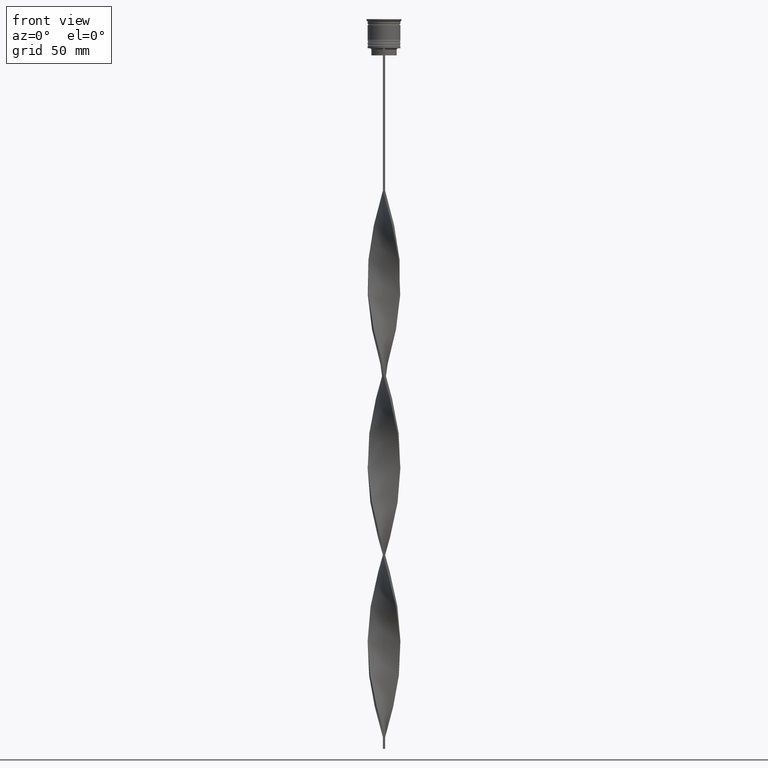
[diagram: clean part render]
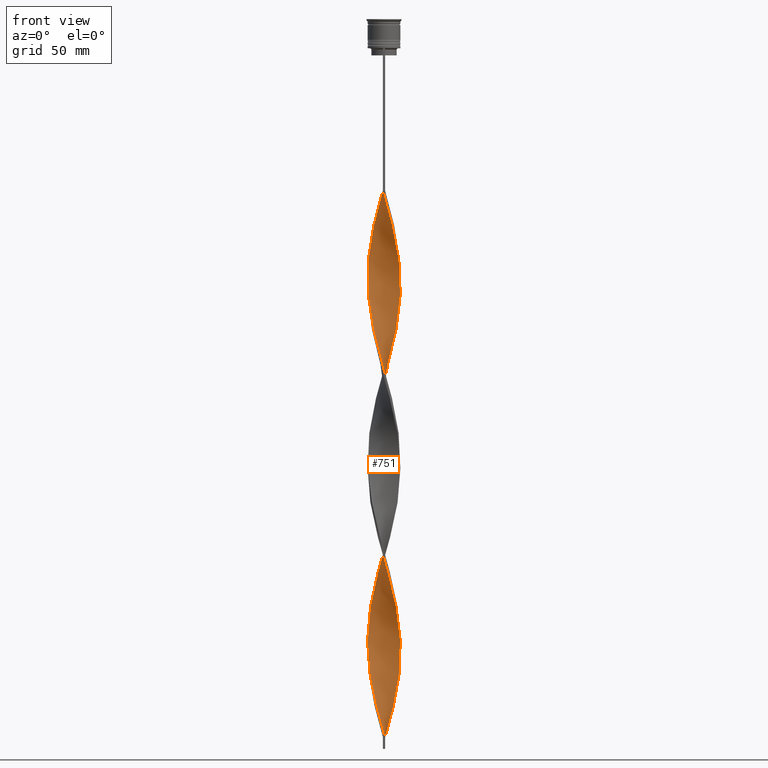
[diagram: same view with one face highlighted and labeled with its STEP entity id]
A machine part, front view. The second image highlights one B-rep face of the part: STEP entity #751.
In plain terms, the highlighted face is a freeform B-spline surface patch.
Its self-contained STEP definition (entity closure, byte-faithful):
#3 = CARTESIAN_POINT ( 'NONE',  ( -5.369226334478397256, -4.519005263234786796, -284.1000000000000227 ) ) ;
#21 = CARTESIAN_POINT ( 'NONE',  ( 3.623436760271010915, 6.010050419448798920, -139.8000000000000114 ) ) ;
#25 = CARTESIAN_POINT ( 'NONE',  ( 4.096437986383644869, 5.724879761844404058, -293.8500000000000227 ) ) ;
#39 = CARTESIAN_POINT ( 'NONE',  ( -7.039350853412307707, -0.05091194777233083030, -192.4500000000000455 ) ) ;
#44 = CARTESIAN_POINT ( 'NONE',  ( -3.241161289406944590, -6.248993995829451364, -293.8500000000000227 ) ) ;
#49 = CARTESIAN_POINT ( 'NONE',  ( -5.724879761844410275, -4.096437986383647534, -126.1500000000000057 ) ) ;
#59 = CARTESIAN_POINT ( 'NONE',  ( 0.05091194777232899149, -7.039350853412307707, -75.45000000000000284 ) ) ;
#66 = CARTESIAN_POINT ( 'NONE',  ( -1.050911947772329436, 6.960649146587694069, -231.4500000000000171 ) ) ;
#76 = CARTESIAN_POINT ( 'NONE',  ( 1.050911947772328547, -6.960649146587694958, -153.4499999999999886 ) ) ;
#77 = FACE_OUTER_BOUND ( 'NONE', #861, .T. ) ;
#80 = CARTESIAN_POINT ( 'NONE',  ( -2.223699182758346993, -6.679087842547251519, -297.7499999999999432 ) ) ;
#86 = CARTESIAN_POINT ( 'NONE',  ( -4.941572540085927834, 5.013572907112386901, -247.0500000000000114 ) ) ;
#105 = CARTESIAN_POINT ( 'NONE',  ( -5.303300858899105741, -4.596194077712556059, -210.0000000000000000 ) ) ;
#109 = CARTESIAN_POINT ( 'NONE',  ( 5.013572907112385124, 4.941572540085928722, -208.0500000000000398 ) ) ;
#120 = CARTESIAN_POINT ( 'NONE',  ( -0.5000000000000000000, -6.999999999999997335, -229.5000000000000000 ) ) ;
#127 = CARTESIAN_POINT ( 'NONE',  ( -2.638647218772209424, 6.502887116878603990, -237.3000000000000114 ) ) ;
#144 = CARTESIAN_POINT ( 'NONE',  ( -1.151482222195766791, -6.944720379959853140, -145.6500000000000341 ) ) ;
#151 = CARTESIAN_POINT ( 'NONE',  ( -5.303300858899105741, -4.596194077712556059, -210.0000000000000000 ) ) ;
#152 = CARTESIAN_POINT ( 'NONE',  ( 6.502887116878598661, -2.638647218772208092, -104.7000000000000171 ) ) ;
#173 = CARTESIAN_POINT ( 'NONE',  ( 4.596194077712557835, -5.303300858899104853, -93.00000000000001421 ) ) ;
#174 = CARTESIAN_POINT ( 'NONE',  ( -5.724879761844405834, 4.096437986383643093, -176.8500000000000512 ) ) ;
#188 = CARTESIAN_POINT ( 'NONE',  ( -5.013572907112380683, 4.941572540085927834, -172.9499999999999886 ) ) ;
#195 = CARTESIAN_POINT ( 'NONE',  ( -6.960649146587694069, -1.050911947772328769, -270.4500000000000455 ) ) ;
#206 = CARTESIAN_POINT ( 'NONE',  ( 4.178815248312734987, -5.665029177712287201, -247.0500000000000114 ) ) ;
#215 = CARTESIAN_POINT ( 'NONE',  ( 5.369226334478399032, 4.519005263234785907, -206.0999999999999943 ) ) ;
#229 = CARTESIAN_POINT ( 'NONE',  ( 5.369226334478393703, -4.519005263234784131, -96.90000000000001990 ) ) ;
#239 = CARTESIAN_POINT ( 'NONE',  ( -2.223699182758346993, -6.679087842547250631, -297.7499999999999432 ) ) ;
#240 = CARTESIAN_POINT ( 'NONE',  ( -6.944720379959854029, 1.151482222195766569, -262.6499999999999773 ) ) ;
#252 = CARTESIAN_POINT ( 'NONE',  ( 4.941572540085925169, 5.013572907112383348, -289.9500000000001023 ) ) ;
#260 = CARTESIAN_POINT ( 'NONE',  ( 6.944720379959854917, -1.151482222195764349, -184.6500000000000057 ) ) ;
#264 = CARTESIAN_POINT ( 'NONE',  ( -5.665029177712290753, 4.178815248312736763, -94.95000000000001705 ) ) ;
#271 = CARTESIAN_POINT ( 'NONE',  ( 3.709988268859836236, -5.957011586770867062, -245.1000000000000227 ) ) ;
#276 = CARTESIAN_POINT ( 'NONE',  ( 6.992035616686076871, 0.6011970849840463371, -116.4000000000000057 ) ) ;
#279 = CARTESIAN_POINT ( 'NONE',  ( 2.223699182758350101, 6.679087842547249743, -219.7500000000000284 ) ) ;
#286 = CARTESIAN_POINT ( 'NONE',  ( -6.248993995829451364, 3.241161289406944590, -98.85000000000002274 ) ) ;
#298 = ORIENTED_EDGE ( 'NONE', *, *, #3319, .T. ) ;
#299 = CARTESIAN_POINT ( 'NONE',  ( 0.5000000000000008882, 6.999999999999997335, -307.5000000000000000 ) ) ;
#308 = CARTESIAN_POINT ( 'NONE',  ( -6.679087842547251519, 2.223699182758346549, -258.7500000000001137 ) ) ;
#324 = CARTESIAN_POINT ( 'NONE',  ( 6.992035616686076871, 0.6011970849840463371, -272.3999999999999773 ) ) ;
#325 = CARTESIAN_POINT ( 'NONE',  ( 4.519005263234785019, 5.369226334478392815, -135.9000000000000341 ) ) ;
#327 = CARTESIAN_POINT ( 'NONE',  ( 0.4999999999999991673, -7.000000000000002665, -307.5000000000000000 ) ) ;
#333 = CARTESIAN_POINT ( 'NONE',  ( -5.303300858899108405, 4.596194077712561388, -93.00000000000001421 ) ) ;
#351 = CARTESIAN_POINT ( 'NONE',  ( -2.732430236082645347, -6.464040919188350109, -139.8000000000000114 ) ) ;
#375 = CARTESIAN_POINT ( 'NONE',  ( 2.223699182758350545, 6.679087842547248854, -219.7500000000000284 ) ) ;
#393 = CARTESIAN_POINT ( 'NONE',  ( 4.096437986383647534, -5.724879761844410275, -165.1500000000000341 ) ) ;
#397 = CARTESIAN_POINT ( 'NONE',  ( -6.679087842547245302, -2.223699182758345660, -200.2500000000000000 ) ) ;
#407 = CARTESIAN_POINT ( 'NONE',  ( 5.957011586770867062, 3.709988268859835348, -284.1000000000000227 ) ) ;
#409 = CARTESIAN_POINT ( 'NONE',  ( 2.223699182758343884, -6.679087842547245302, -83.25000000000000000 ) ) ;
#415 = CARTESIAN_POINT ( 'NONE',  ( 6.960649146587694069, 1.050911947772331434, -192.4500000000000455 ) ) ;
#436 = CARTESIAN_POINT ( 'NONE',  ( 6.679087842547248854, -2.223699182758350101, -180.7500000000000568 ) ) ;
#437 = CARTESIAN_POINT ( 'NONE',  ( -0.05091194777232812413, 7.039350853412307707, -153.4500000000000171 ) ) ;
#451 = CARTESIAN_POINT ( 'NONE',  ( 0.05091194777233409158, 7.039350853412313036, -227.5500000000000114 ) ) ;
#452 = CARTESIAN_POINT ( 'NONE',  ( -1.151482222195763905, 6.944720379959848700, -157.3499999999999943 ) ) ;
#459 = CARTESIAN_POINT ( 'NONE',  ( -5.957011586770867950, -3.709988268859835348, -206.0999999999999943 ) ) ;
#462 = CARTESIAN_POINT ( 'NONE',  ( 1.687590702477054005, -6.811904111253546112, -237.3000000000000114 ) ) ;
#463 = CARTESIAN_POINT ( 'NONE',  ( 1.588885425579184218, -6.835601151645851026, -155.4000000000000057 ) ) ;
#470 = LINE ( 'NONE', #1128, #2357 ) ;
#479 = CARTESIAN_POINT ( 'NONE',  ( -5.724879761844409387, -4.096437986383647534, -126.1500000000000199 ) ) ;
#501 = CARTESIAN_POINT ( 'NONE',  ( 2.638647218772208536, 6.502887116878598661, -143.6999999999999886 ) ) ;
#518 = CARTESIAN_POINT ( 'NONE',  ( -0.6011970849840458930, 6.992035616686076871, -155.4000000000000057 ) ) ;
#529 = CARTESIAN_POINT ( 'NONE',  ( -5.369226334478397256, -4.519005263234786796, -284.1000000000000227 ) ) ;
#530 = CARTESIAN_POINT ( 'NONE',  ( -3.623436760271012247, 6.010050419448805137, -241.1999999999999886 ) ) ;
#539 = CARTESIAN_POINT ( 'NONE',  ( 3.709988268859836236, -5.957011586770867062, -89.10000000000000853 ) ) ;
#540 = CARTESIAN_POINT ( 'NONE',  ( -2.638647218772209868, -6.502887116878598661, -221.7000000000000171 ) ) ;
#543 = CARTESIAN_POINT ( 'NONE',  ( 6.944720379959848700, 1.151482222195764349, -274.3499999999999659 ) ) ;
#554 = CARTESIAN_POINT ( 'NONE',  ( 2.732430236082646235, 6.464040919188350109, -217.7999999999999829 ) ) ;
#566 = CARTESIAN_POINT ( 'NONE',  ( 4.941572540085925169, 5.013572907112384236, -289.9500000000001023 ) ) ;
#578 = CARTESIAN_POINT ( 'NONE',  ( 6.679087842547249743, -2.223699182758350101, -180.7500000000000284 ) ) ;
#582 = CARTESIAN_POINT ( 'NONE',  ( -4.941572540085927834, 5.013572907112386901, -91.05000000000001137 ) ) ;
#596 = CARTESIAN_POINT ( 'NONE',  ( -4.519005263234787684, 5.369226334478397256, -245.1000000000000227 ) ) ;
#601 = CARTESIAN_POINT ( 'NONE',  ( -6.464040919188350109, 2.732430236082644903, -100.7999999999999972 ) ) ;
#611 = CARTESIAN_POINT ( 'NONE',  ( 3.150435534158376516, 6.295221077053192893, -297.7499999999999432 ) ) ;
#619 = CARTESIAN_POINT ( 'NONE',  ( -6.835601151645851026, -1.588885425579185107, -272.3999999999999773 ) ) ;
#626 = CARTESIAN_POINT ( 'NONE',  ( -2.638647218772209424, 6.502887116878603990, -81.30000000000001137 ) ) ;
#646 = CARTESIAN_POINT ( 'NONE',  ( -1.151482222195767013, -6.944720379959854029, -301.6500000000000341 ) ) ;
#651 = CARTESIAN_POINT ( 'NONE',  ( -6.811904111253551442, 1.687590702477056226, -104.7000000000000171 ) ) ;
#656 = CARTESIAN_POINT ( 'NONE',  ( -6.464040919188346557, -2.732430236082641350, -202.1999999999999886 ) ) ;
#662 = CARTESIAN_POINT ( 'NONE',  ( -0.5000000000000000000, -6.999999999999997335, -229.5000000000000000 ) ) ;
#666 = EDGE_CURVE ( 'NONE', #3395, #1753, #2449, .T. ) ;
#671 = CARTESIAN_POINT ( 'NONE',  ( 5.369226334478393703, -4.519005263234784131, -252.9000000000000057 ) ) ;
#674 = CARTESIAN_POINT ( 'NONE',  ( -4.178815248312738539, -5.665029177712290753, -133.9500000000000455 ) ) ;
#690 = CARTESIAN_POINT ( 'NONE',  ( 5.369226334478399032, 4.519005263234785907, -206.0999999999999943 ) ) ;
#713 = CARTESIAN_POINT ( 'NONE',  ( 4.178815248312741204, 5.665029177712288977, -211.9499999999999886 ) ) ;
#729 = CARTESIAN_POINT ( 'NONE',  ( -7.000000000000002665, -0.4999999999999995559, -268.4999999999999432 ) ) ;
#738 = CARTESIAN_POINT ( 'NONE',  ( -6.960649146587689629, 1.050911947772333432, -188.5500000000000114 ) ) ;
#739 = CARTESIAN_POINT ( 'NONE',  ( -1.050911947772333654, -6.960649146587689629, -227.5499999999999829 ) ) ;
#748 = CARTESIAN_POINT ( 'NONE',  ( 4.519005263234786796, -5.369226334478397256, -167.0999999999999943 ) ) ;
#751 = ADVANCED_FACE ( 'NONE', ( #77 ), #3447, .T. ) ;
#760 = CARTESIAN_POINT ( 'NONE',  ( -6.248993995829449588, -3.241161289406938373, -204.1500000000000341 ) ) ;
#762 = CARTESIAN_POINT ( 'NONE',  ( 6.944720379959849588, 1.151482222195764349, -118.3500000000000085 ) ) ;
#768 = CARTESIAN_POINT ( 'NONE',  ( -2.223699182758343884, 6.679087842547246190, -161.2500000000000284 ) ) ;
#769 = CARTESIAN_POINT ( 'NONE',  ( 2.732430236082642239, -6.464040919188345669, -85.20000000000001705 ) ) ;
#773 = CARTESIAN_POINT ( 'NONE',  ( 7.039350853412307707, 0.05091194777232844332, -270.4500000000000455 ) ) ;
#776 = CARTESIAN_POINT ( 'NONE',  ( 7.000000000000002665, 0.4999999999999987232, -190.5000000000000000 ) ) ;
#803 = CARTESIAN_POINT ( 'NONE',  ( -4.096437986383643093, -5.724879761844404946, -215.8500000000000512 ) ) ;
#809 = CARTESIAN_POINT ( 'NONE',  ( 2.126858903386041000, 6.710553156704005318, -301.6500000000000341 ) ) ;
#821 = CARTESIAN_POINT ( 'NONE',  ( 3.150435534158376072, 6.295221077053192005, -141.7499999999999716 ) ) ;
#822 = CARTESIAN_POINT ( 'NONE',  ( 6.835601151645846585, -1.588885425579185107, -108.6000000000000085 ) ) ;
#832 = CARTESIAN_POINT ( 'NONE',  ( -2.126858903386038779, -6.710553156704006206, -223.6500000000000341 ) ) ;
#844 = CARTESIAN_POINT ( 'NONE',  ( -7.039350853412307707, -0.05091194777233083030, -192.4500000000000171 ) ) ;
#851 = CARTESIAN_POINT ( 'NONE',  ( -0.6011970849840483355, -6.992035616686081312, -303.5999999999999659 ) ) ;
#852 = CARTESIAN_POINT ( 'NONE',  ( 1.151482222195764571, 6.944720379959854917, -223.6500000000000341 ) ) ;
#861 = EDGE_LOOP ( 'NONE', ( #3917, #298, #1668, #1415 ) ) ;
#867 = CARTESIAN_POINT ( 'NONE',  ( 5.303300858899104853, 4.596194077712556947, -132.0000000000000000 ) ) ;
#872 = CARTESIAN_POINT ( 'NONE',  ( -6.248993995829451364, 3.241161289406944590, -254.8500000000000227 ) ) ;
#892 = CARTESIAN_POINT ( 'NONE',  ( -2.638647218772209868, -6.502887116878598661, -221.7000000000000171 ) ) ;
#893 = CARTESIAN_POINT ( 'NONE',  ( 6.835601151645846585, -1.588885425579185107, -108.6000000000000085 ) ) ;
#897 = CARTESIAN_POINT ( 'NONE',  ( -5.303300858899108405, 4.596194077712561388, -249.0000000000000000 ) ) ;
#903 = CARTESIAN_POINT ( 'NONE',  ( -2.732430236082645347, -6.464040919188350109, -139.8000000000000114 ) ) ;
#913 = VERTEX_POINT ( 'NONE', #2586 ) ;
#918 = CARTESIAN_POINT ( 'NONE',  ( 6.295221077053192893, -3.150435534158376516, -102.7500000000000284 ) ) ;
#921 = CARTESIAN_POINT ( 'NONE',  ( -6.992035616686082200, 0.6011970849840480025, -264.6000000000000227 ) ) ;
#933 = CARTESIAN_POINT ( 'NONE',  ( 3.623436760271010915, 6.010050419448798920, -295.8000000000000114 ) ) ;
#938 = CARTESIAN_POINT ( 'NONE',  ( 5.665029177712287201, 4.178815248312733210, -130.0499999999999829 ) ) ;
#944 = CARTESIAN_POINT ( 'NONE',  ( -6.960649146587694958, -1.050911947772328769, -270.4500000000000455 ) ) ;
#956 = CARTESIAN_POINT ( 'NONE',  ( -1.588885425579185995, -6.835601151645846585, -225.5999999999999943 ) ) ;
#964 = CARTESIAN_POINT ( 'NONE',  ( 2.732430236082642239, -6.464040919188345669, -241.1999999999999886 ) ) ;
#971 = CARTESIAN_POINT ( 'NONE',  ( -4.519005263234787684, 5.369226334478397256, -89.10000000000000853 ) ) ;
#972 = CARTESIAN_POINT ( 'NONE',  ( 1.151482222195764793, -6.944720379959847811, -79.35000000000002274 ) ) ;
#987 = CARTESIAN_POINT ( 'NONE',  ( 2.638647218772208536, 6.502887116878598661, -143.6999999999999886 ) ) ;
#993 = CARTESIAN_POINT ( 'NONE',  ( -5.369226334478397256, -4.519005263234786796, -128.0999999999999943 ) ) ;
#1022 = CARTESIAN_POINT ( 'NONE',  ( -7.039350853412313036, 0.05091194777232975477, -266.5500000000000114 ) ) ;
#1029 = CARTESIAN_POINT ( 'NONE',  ( -6.811904111253547001, -1.687590702477052673, -198.3000000000000114 ) ) ;
#1044 = CARTESIAN_POINT ( 'NONE',  ( 6.835601151645851026, 1.588885425579184218, -194.4000000000000057 ) ) ;
#1060 = VERTEX_POINT ( 'NONE', #3944 ) ;
#1062 = CARTESIAN_POINT ( 'NONE',  ( -6.679087842547250631, 2.223699182758346549, -258.7500000000001137 ) ) ;
#1064 = CARTESIAN_POINT ( 'NONE',  ( -6.835601151645851026, -1.588885425579185107, -116.4000000000000057 ) ) ;
#1073 = CARTESIAN_POINT ( 'NONE',  ( -6.999999999999997335, 0.5000000000000013323, -190.5000000000000000 ) ) ;
#1074 = CARTESIAN_POINT ( 'NONE',  ( -6.010050419448798920, 3.623436760271011359, -178.8000000000000114 ) ) ;
#1081 = CARTESIAN_POINT ( 'NONE',  ( -4.096437986383643981, -5.724879761844405834, -215.8500000000000512 ) ) ;
#1084 = CARTESIAN_POINT ( 'NONE',  ( 6.811904111253551442, -1.687590702477057114, -182.6999999999999886 ) ) ;
#1085 = CARTESIAN_POINT ( 'NONE',  ( 1.588885425579185329, 6.835601151645846585, -147.6000000000000227 ) ) ;
#1109 = CARTESIAN_POINT ( 'NONE',  ( -0.05091194777233028906, -7.039350853412313036, -149.5500000000000398 ) ) ;
#1119 = CARTESIAN_POINT ( 'NONE',  ( -4.519005263234785907, -5.369226334478392815, -213.9000000000000057 ) ) ;
#1120 = CARTESIAN_POINT ( 'NONE',  ( 6.010050419448798920, -3.623436760271010471, -100.7999999999999972 ) ) ;
#1128 = CARTESIAN_POINT ( 'NONE',  ( -0.5000000000000000000, -6.999999999999997335, -73.50000000000001421 ) ) ;
#1137 = CARTESIAN_POINT ( 'NONE',  ( -6.992035616686076871, -0.6011970849840454489, -194.4000000000000057 ) ) ;
#1151 = CARTESIAN_POINT ( 'NONE',  ( -6.960649146587689629, 1.050911947772333210, -188.5500000000000398 ) ) ;
#1153 = CARTESIAN_POINT ( 'NONE',  ( -2.638647218772209424, 6.502887116878603990, -81.30000000000001137 ) ) ;
#1163 = CARTESIAN_POINT ( 'NONE',  ( -2.732430236082645347, -6.464040919188350109, -295.8000000000000114 ) ) ;
#1164 = CARTESIAN_POINT ( 'NONE',  ( -6.010050419448805137, -3.623436760271012247, -280.1999999999999886 ) ) ;
#1167 = CARTESIAN_POINT ( 'NONE',  ( -2.223699182758346993, -6.679087842547251519, -141.7499999999999716 ) ) ;
#1174 = CARTESIAN_POINT ( 'NONE',  ( 6.710553156704005318, -2.126858903386040556, -262.6499999999999773 ) ) ;
#1181 = CARTESIAN_POINT ( 'NONE',  ( -6.010050419448805137, -3.623436760271012247, -280.1999999999999886 ) ) ;
#1182 = CARTESIAN_POINT ( 'NONE',  ( -2.126858903386041444, 6.710553156704010647, -235.3500000000000227 ) ) ;
#1194 = CARTESIAN_POINT ( 'NONE',  ( 5.303300858899104853, 4.596194077712556947, -288.0000000000000568 ) ) ;
#1197 = CARTESIAN_POINT ( 'NONE',  ( -4.178815248312733210, 5.665029177712288089, -169.0500000000000114 ) ) ;
#1200 = CARTESIAN_POINT ( 'NONE',  ( -3.150435534158380513, -6.295221077053191117, -219.7500000000000284 ) ) ;
#1203 = CARTESIAN_POINT ( 'NONE',  ( 1.151482222195764793, -6.944720379959848700, -235.3500000000000227 ) ) ;
#1204 = CARTESIAN_POINT ( 'NONE',  ( 6.992035616686081312, -0.6011970849840487796, -186.5999999999999943 ) ) ;
#1206 = CARTESIAN_POINT ( 'NONE',  ( -1.151482222195767013, -6.944720379959854029, -145.6500000000000341 ) ) ;
#1209 = CARTESIAN_POINT ( 'NONE',  ( 6.502887116878598661, -2.638647218772208092, -260.6999999999999886 ) ) ;
#1228 = CARTESIAN_POINT ( 'NONE',  ( 6.999999999999997335, -0.5000000000000004441, -112.5000000000000142 ) ) ;
#1233 = CARTESIAN_POINT ( 'NONE',  ( 7.000000000000002665, 0.4999999999999987232, -190.5000000000000000 ) ) ;
#1249 = CARTESIAN_POINT ( 'NONE',  ( 6.992035616686076871, 0.6011970849840463371, -272.3999999999999773 ) ) ;
#1255 = CARTESIAN_POINT ( 'NONE',  ( 3.241161289406943258, 6.248993995829452253, -215.8500000000000512 ) ) ;
#1259 = CARTESIAN_POINT ( 'NONE',  ( -1.050911947772329436, 6.960649146587694069, -75.45000000000000284 ) ) ;
#1266 = CARTESIAN_POINT ( 'NONE',  ( 5.013572907112383348, -4.941572540085925169, -250.9500000000000171 ) ) ;
#1284 = CARTESIAN_POINT ( 'NONE',  ( -6.944720379959854029, 1.151482222195766569, -106.6500000000000199 ) ) ;
#1292 = CARTESIAN_POINT ( 'NONE',  ( 3.150435534158376516, 6.295221077053192893, -141.7500000000000000 ) ) ;
#1338 = CARTESIAN_POINT ( 'NONE',  ( -6.944720379959853140, 1.151482222195766347, -262.6499999999999773 ) ) ;
#1339 = EDGE_CURVE ( 'NONE', #3395, #913, #470, .T. ) ;
#1344 = CARTESIAN_POINT ( 'NONE',  ( -6.944720379959849588, -1.151482222195760352, -196.3500000000000227 ) ) ;
#1350 = CARTESIAN_POINT ( 'NONE',  ( -6.992035616686076871, -0.6011970849840454489, -194.4000000000000057 ) ) ;
#1351 = CARTESIAN_POINT ( 'NONE',  ( 2.732430236082642239, -6.464040919188345669, -85.20000000000001705 ) ) ;
#1354 = CARTESIAN_POINT ( 'NONE',  ( -4.178815248312738539, -5.665029177712290753, -289.9500000000001023 ) ) ;
#1357 = CARTESIAN_POINT ( 'NONE',  ( -6.248993995829449588, -3.241161289406937929, -204.1500000000000341 ) ) ;
#1360 = CARTESIAN_POINT ( 'NONE',  ( -6.248993995829451364, 3.241161289406944590, -254.8500000000000227 ) ) ;
#1381 = CARTESIAN_POINT ( 'NONE',  ( 3.709988268859842009, 5.957011586770870615, -213.9000000000000057 ) ) ;
#1391 = CARTESIAN_POINT ( 'NONE',  ( 6.295221077053192005, -3.150435534158376072, -102.7500000000000284 ) ) ;
#1398 = CARTESIAN_POINT ( 'NONE',  ( -3.150435534158377848, 6.295221077053198222, -239.2500000000000284 ) ) ;
#1407 = CARTESIAN_POINT ( 'NONE',  ( -7.000000000000002665, -0.4999999999999995559, -112.5000000000000142 ) ) ;
#1412 = CARTESIAN_POINT ( 'NONE',  ( 1.050911947772329880, 6.960649146587689629, -305.5500000000000114 ) ) ;
#1415 = ORIENTED_EDGE ( 'NONE', *, *, #666, .F. ) ;
#1418 = CARTESIAN_POINT ( 'NONE',  ( 0.4999999999999991673, -7.000000000000002665, -151.5000000000000284 ) ) ;
#1424 = CARTESIAN_POINT ( 'NONE',  ( -6.960649146587694958, -1.050911947772328769, -114.4500000000000313 ) ) ;
#1428 = CARTESIAN_POINT ( 'NONE',  ( 0.5000000000000008882, 6.999999999999997335, -151.5000000000000284 ) ) ;
#1452 = CARTESIAN_POINT ( 'NONE',  ( -6.502887116878604878, -2.638647218772208980, -276.3000000000000114 ) ) ;
#1477 = CARTESIAN_POINT ( 'NONE',  ( 3.241161289406941037, -6.248993995829447812, -87.15000000000001990 ) ) ;
#1492 = CARTESIAN_POINT ( 'NONE',  ( 6.835601151645851026, 1.588885425579184218, -194.4000000000000057 ) ) ;
#1502 = CARTESIAN_POINT ( 'NONE',  ( -2.126858903386038779, -6.710553156704006206, -223.6500000000000341 ) ) ;
#1515 = CARTESIAN_POINT ( 'NONE',  ( -6.464040919188350109, 2.732430236082644903, -256.8000000000000114 ) ) ;
#1517 = CARTESIAN_POINT ( 'NONE',  ( 5.013572907112384236, -4.941572540085925169, -250.9499999999999602 ) ) ;
#1531 = CARTESIAN_POINT ( 'NONE',  ( 0.4999999999999991673, -7.000000000000002665, -151.5000000000000284 ) ) ;
#1535 = CARTESIAN_POINT ( 'NONE',  ( 5.013572907112386012, 4.941572540085929610, -208.0500000000000398 ) ) ;
#1546 = CARTESIAN_POINT ( 'NONE',  ( 6.999999999999997335, -0.5000000000000004441, -268.4999999999999432 ) ) ;
#1556 = CARTESIAN_POINT ( 'NONE',  ( 4.178815248312741204, 5.665029177712288977, -211.9499999999999886 ) ) ;
#1563 = CARTESIAN_POINT ( 'NONE',  ( -6.992035616686082200, 0.6011970849840480025, -108.6000000000000085 ) ) ;
#1573 = CARTESIAN_POINT ( 'NONE',  ( 5.369226334478393703, -4.519005263234784131, -252.9000000000000057 ) ) ;
#1578 = CARTESIAN_POINT ( 'NONE',  ( 5.303300858899104853, 4.596194077712556947, -132.0000000000000000 ) ) ;
#1583 = CARTESIAN_POINT ( 'NONE',  ( -5.957011586770871503, 3.709988268859839788, -252.9000000000000057 ) ) ;
#1614 = CARTESIAN_POINT ( 'NONE',  ( -6.464040919188350109, 2.732430236082644903, -100.7999999999999972 ) ) ;
#1625 = CARTESIAN_POINT ( 'NONE',  ( -2.126858903386041444, 6.710553156704009758, -79.35000000000002274 ) ) ;
#1634 = CARTESIAN_POINT ( 'NONE',  ( -6.248993995829451364, 3.241161289406944590, -98.85000000000002274 ) ) ;
#1637 = CARTESIAN_POINT ( 'NONE',  ( 0.6011970849840467812, -6.992035616686076871, -233.4000000000000057 ) ) ;
#1638 = CARTESIAN_POINT ( 'NONE',  ( 4.596194077712557835, -5.303300858899104853, -93.00000000000001421 ) ) ;
#1646 = CARTESIAN_POINT ( 'NONE',  ( -5.957011586770871503, 3.709988268859839788, -252.9000000000000057 ) ) ;
#1656 = CARTESIAN_POINT ( 'NONE',  ( -5.369226334478392815, 4.519005263234785019, -174.9000000000000057 ) ) ;
#1662 = CARTESIAN_POINT ( 'NONE',  ( 6.999999999999997335, -0.5000000000000004441, -268.4999999999999432 ) ) ;
#1665 = CARTESIAN_POINT ( 'NONE',  ( -0.5000000000000000000, 7.000000000000002665, -229.5000000000000000 ) ) ;
#1668 = ORIENTED_EDGE ( 'NONE', *, *, #2516, .F. ) ;
#1679 = CARTESIAN_POINT ( 'NONE',  ( -5.665029177712287201, -4.178815248312735875, -208.0500000000000398 ) ) ;
#1682 = CARTESIAN_POINT ( 'NONE',  ( 6.464040919188350109, -2.732430236082645791, -178.8000000000000114 ) ) ;
#1698 = CARTESIAN_POINT ( 'NONE',  ( -1.050911947772333876, -6.960649146587689629, -227.5500000000000114 ) ) ;
#1703 = CARTESIAN_POINT ( 'NONE',  ( -4.941572540085926946, -5.013572907112378907, -211.9499999999999886 ) ) ;
#1707 = CARTESIAN_POINT ( 'NONE',  ( 5.957011586770870615, -3.709988268859841121, -174.9000000000000057 ) ) ;
#1711 = CARTESIAN_POINT ( 'NONE',  ( -3.623436760271012247, 6.010050419448805137, -85.20000000000001705 ) ) ;
#1721 = CARTESIAN_POINT ( 'NONE',  ( -2.126858903386041444, 6.710553156704009758, -235.3500000000000227 ) ) ;
#1729 = CARTESIAN_POINT ( 'NONE',  ( -1.687590702477053117, 6.811904111253547001, -159.3000000000000114 ) ) ;
#1749 = CARTESIAN_POINT ( 'NONE',  ( 2.126858903386041000, 6.710553156704005318, -145.6500000000000341 ) ) ;
#1753 = VERTEX_POINT ( 'NONE', #3144 ) ;
#1755 = CARTESIAN_POINT ( 'NONE',  ( 6.679087842547246190, 2.223699182758344328, -122.2500000000000142 ) ) ;
#1769 = CARTESIAN_POINT ( 'NONE',  ( 1.588885425579185329, 6.835601151645846585, -147.6000000000000227 ) ) ;
#1770 = CARTESIAN_POINT ( 'NONE',  ( 5.724879761844404058, -4.096437986383644869, -98.85000000000002274 ) ) ;
#1778 = CARTESIAN_POINT ( 'NONE',  ( -4.178815248312738539, -5.665029177712290753, -289.9500000000001023 ) ) ;
#1789 = CARTESIAN_POINT ( 'NONE',  ( -5.369226334478392815, 4.519005263234785019, -174.9000000000000057 ) ) ;
#1797 = CARTESIAN_POINT ( 'NONE',  ( -0.05091194777233028906, -7.039350853412313036, -305.5500000000000114 ) ) ;
#1798 = CARTESIAN_POINT ( 'NONE',  ( 4.941572540085928722, -5.013572907112388677, -169.0499999999999829 ) ) ;
#1806 = CARTESIAN_POINT ( 'NONE',  ( 4.178815248312734987, -5.665029177712287201, -91.05000000000001137 ) ) ;
#1812 = CARTESIAN_POINT ( 'NONE',  ( 6.248993995829447812, 3.241161289406941037, -282.1500000000000909 ) ) ;
#1821 = CARTESIAN_POINT ( 'NONE',  ( 5.665029177712289865, -4.178815248312741204, -172.9499999999999886 ) ) ;
#1831 = CARTESIAN_POINT ( 'NONE',  ( -6.010050419448805137, -3.623436760271012247, -124.2000000000000028 ) ) ;
#1834 = CARTESIAN_POINT ( 'NONE',  ( 6.811904111253547001, 1.687590702477053561, -276.3000000000000114 ) ) ;
#1842 = CARTESIAN_POINT ( 'NONE',  ( 6.010050419448806025, 3.623436760271011803, -202.1999999999999886 ) ) ;
#1845 = CARTESIAN_POINT ( 'NONE',  ( 3.623436760271010915, 6.010050419448798920, -295.8000000000000114 ) ) ;
#1846 = CARTESIAN_POINT ( 'NONE',  ( 6.960649146587689629, -1.050911947772329214, -266.5500000000000114 ) ) ;
#1849 = CARTESIAN_POINT ( 'NONE',  ( -6.010050419448805137, -3.623436760271012247, -124.2000000000000028 ) ) ;
#1863 = CARTESIAN_POINT ( 'NONE',  ( 5.665029177712287201, 4.178815248312733210, -130.0500000000000114 ) ) ;
#1864 = CARTESIAN_POINT ( 'NONE',  ( 6.679087842547246190, 2.223699182758344328, -278.2500000000000000 ) ) ;
#1866 = CARTESIAN_POINT ( 'NONE',  ( 2.223699182758344328, -6.679087842547246190, -239.2500000000000000 ) ) ;
#1867 = CARTESIAN_POINT ( 'NONE',  ( -7.000000000000002665, -0.4999999999999995559, -268.4999999999999432 ) ) ;
#1870 = CARTESIAN_POINT ( 'NONE',  ( 2.638647218772208536, 6.502887116878598661, -299.6999999999999886 ) ) ;
#1873 = CARTESIAN_POINT ( 'NONE',  ( -3.623436760271012247, 6.010050419448805137, -85.20000000000001705 ) ) ;
#1877 = CARTESIAN_POINT ( 'NONE',  ( -3.241161289406944590, -6.248993995829451364, -137.8499999999999943 ) ) ;
#1889 = CARTESIAN_POINT ( 'NONE',  ( 6.960649146587689629, -1.050911947772329214, -110.5500000000000114 ) ) ;
#1893 = CARTESIAN_POINT ( 'NONE',  ( 6.502887116878604878, 2.638647218772208092, -198.3000000000000114 ) ) ;
#1899 = CARTESIAN_POINT ( 'NONE',  ( -6.295221077053198222, -3.150435534158377404, -122.2500000000000142 ) ) ;
#1903 = CARTESIAN_POINT ( 'NONE',  ( 5.303300858899104853, 4.596194077712556947, -288.0000000000000568 ) ) ;
#1910 = CARTESIAN_POINT ( 'NONE',  ( -0.5000000000000000000, -6.999999999999997335, -73.50000000000001421 ) ) ;
#1919 = CARTESIAN_POINT ( 'NONE',  ( -6.944720379959853140, 1.151482222195766347, -106.6500000000000199 ) ) ;
#1927 = CARTESIAN_POINT ( 'NONE',  ( 6.248993995829447812, 3.241161289406941037, -126.1500000000000057 ) ) ;
#1933 = CARTESIAN_POINT ( 'NONE',  ( 5.724879761844404058, -4.096437986383644869, -254.8500000000000227 ) ) ;
#1936 = CARTESIAN_POINT ( 'NONE',  ( -3.709988268859841121, -5.957011586770870615, -135.9000000000000341 ) ) ;
#1950 = CARTESIAN_POINT ( 'NONE',  ( -3.709988268859841121, -5.957011586770870615, -291.8999999999999773 ) ) ;
#1957 = CARTESIAN_POINT ( 'NONE',  ( 7.039350853412313036, -0.05091194777233376545, -188.5500000000000114 ) ) ;
#1970 = CARTESIAN_POINT ( 'NONE',  ( 6.248993995829447812, 3.241161289406941481, -282.1500000000000909 ) ) ;
#1977 = CARTESIAN_POINT ( 'NONE',  ( 4.941572540085927834, -5.013572907112387789, -169.0500000000000114 ) ) ;
#1995 = CARTESIAN_POINT ( 'NONE',  ( -4.096437986383647534, 5.724879761844410275, -243.1500000000000057 ) ) ;
#2004 = CARTESIAN_POINT ( 'NONE',  ( -0.5000000000000000000, 7.000000000000002665, -73.50000000000001421 ) ) ;
#2012 = CARTESIAN_POINT ( 'NONE',  ( 1.687590702477057558, 6.811904111253551442, -221.7000000000000171 ) ) ;
#2015 = CARTESIAN_POINT ( 'NONE',  ( -3.150435534158377404, 6.295221077053197334, -83.25000000000000000 ) ) ;
#2025 = CARTESIAN_POINT ( 'NONE',  ( 4.096437986383644869, 5.724879761844404058, -137.8499999999999943 ) ) ;
#2026 = CARTESIAN_POINT ( 'NONE',  ( 6.811904111253547001, 1.687590702477053561, -120.2999999999999972 ) ) ;
#2033 = CARTESIAN_POINT ( 'NONE',  ( 5.303300858899108405, -4.596194077712562276, -170.9999999999999716 ) ) ;
#2043 = CARTESIAN_POINT ( 'NONE',  ( -4.178815248312733210, 5.665029177712288089, -169.0499999999999829 ) ) ;
#2045 = CARTESIAN_POINT ( 'NONE',  ( -1.588885425579185551, 6.835601151645851026, -77.40000000000000568 ) ) ;
#2058 = CARTESIAN_POINT ( 'NONE',  ( -3.623436760271011803, -6.010050419448798920, -217.7999999999999829 ) ) ;
#2061 = CARTESIAN_POINT ( 'NONE',  ( 0.5000000000000008882, 6.999999999999997335, -307.5000000000000000 ) ) ;
#2066 = CARTESIAN_POINT ( 'NONE',  ( -6.295221077053198222, -3.150435534158377404, -278.2500000000000000 ) ) ;
#2100 = CARTESIAN_POINT ( 'NONE',  ( -6.835601151645846585, 1.588885425579185773, -186.5999999999999943 ) ) ;
#2101 = CARTESIAN_POINT ( 'NONE',  ( -6.710553156704011535, -2.126858903386041000, -118.3500000000000085 ) ) ;
#2102 = CARTESIAN_POINT ( 'NONE',  ( 5.665029177712287201, 4.178815248312733210, -286.0500000000000114 ) ) ;
#2106 = CARTESIAN_POINT ( 'NONE',  ( 5.957011586770867062, 3.709988268859835348, -128.0999999999999943 ) ) ;
#2108 = CARTESIAN_POINT ( 'NONE',  ( 0.4999999999999991673, -7.000000000000002665, -307.5000000000000000 ) ) ;
#2109 = CARTESIAN_POINT ( 'NONE',  ( 0.05091194777233409852, 7.039350853412313036, -227.5499999999999829 ) ) ;
#2120 = CARTESIAN_POINT ( 'NONE',  ( -3.150435534158380069, -6.295221077053190228, -219.7500000000000284 ) ) ;
#2132 = CARTESIAN_POINT ( 'NONE',  ( 4.519005263234786796, -5.369226334478397256, -167.0999999999999943 ) ) ;
#2145 = CARTESIAN_POINT ( 'NONE',  ( 7.039350853412307707, 0.05091194777232845026, -270.4500000000000455 ) ) ;
#2148 = CARTESIAN_POINT ( 'NONE',  ( -5.013572907112379795, 4.941572540085926946, -172.9499999999999886 ) ) ;
#2155 = CARTESIAN_POINT ( 'NONE',  ( 7.039350853412307707, 0.05091194777232845026, -114.4500000000000171 ) ) ;
#2158 = CARTESIAN_POINT ( 'NONE',  ( -1.588885425579185551, 6.835601151645851026, -233.4000000000000057 ) ) ;
#2160 = CARTESIAN_POINT ( 'NONE',  ( 6.835601151645846585, -1.588885425579185107, -264.6000000000000227 ) ) ;
#2179 = CARTESIAN_POINT ( 'NONE',  ( -7.039350853412313036, 0.05091194777232976171, -266.5500000000000114 ) ) ;
#2190 = CARTESIAN_POINT ( 'NONE',  ( 2.126858903386041000, 6.710553156704005318, -301.6500000000000341 ) ) ;
#2199 = CARTESIAN_POINT ( 'NONE',  ( 6.502887116878598661, -2.638647218772208092, -104.7000000000000171 ) ) ;
#2203 = CARTESIAN_POINT ( 'NONE',  ( 6.248993995829453141, -3.241161289406942370, -176.8500000000000512 ) ) ;
#2209 = CARTESIAN_POINT ( 'NONE',  ( -7.000000000000002665, -0.4999999999999995559, -112.5000000000000142 ) ) ;
#2233 = CARTESIAN_POINT ( 'NONE',  ( -3.709988268859841121, -5.957011586770870615, -135.9000000000000341 ) ) ;
#2241 = CARTESIAN_POINT ( 'NONE',  ( 3.241161289406941481, -6.248993995829447812, -87.15000000000001990 ) ) ;
#2243 = CARTESIAN_POINT ( 'NONE',  ( 2.126858903386041000, 6.710553156704005318, -145.6500000000000341 ) ) ;
#2249 = CARTESIAN_POINT ( 'NONE',  ( -5.013572907112386901, -4.941572540085927834, -130.0500000000000114 ) ) ;
#2256 = CARTESIAN_POINT ( 'NONE',  ( -5.957011586770871503, 3.709988268859839788, -96.90000000000001990 ) ) ;
#2258 = CARTESIAN_POINT ( 'NONE',  ( 0.5000000000000008882, 6.999999999999997335, -307.5000000000000000 ) ) ;
#2259 = CARTESIAN_POINT ( 'NONE',  ( 2.223699182758344328, -6.679087842547246190, -83.25000000000000000 ) ) ;
#2264 = CARTESIAN_POINT ( 'NONE',  ( -0.05091194777233028906, -7.039350853412313036, -305.5500000000000114 ) ) ;
#2290 = CARTESIAN_POINT ( 'NONE',  ( 1.588885425579184218, -6.835601151645851026, -155.4000000000000057 ) ) ;
#2298 = CARTESIAN_POINT ( 'NONE',  ( -7.039350853412313036, 0.05091194777232976171, -110.5500000000000114 ) ) ;
#2309 = CARTESIAN_POINT ( 'NONE',  ( 6.010050419448806025, 3.623436760271011803, -202.1999999999999886 ) ) ;
#2325 = CARTESIAN_POINT ( 'NONE',  ( 6.944720379959849588, 1.151482222195764349, -274.3499999999999659 ) ) ;
#2326 = CARTESIAN_POINT ( 'NONE',  ( 2.732430236082646235, 6.464040919188350109, -217.7999999999999829 ) ) ;
#2327 =( BOUNDED_CURVE ( )  B_SPLINE_CURVE ( 2, ( #3125, #1259, #3506, #1625, #626, #2542, #1873, #3816, #971, #582, #333, #264, #4077, #286, #601, #3795, #651, #1919, #1563, #3190, #2209, #2882, #2567, #3836, #2817, #1899, #1849, #49, #993, #2249, #3524, #674, #1936, #3208, #351, #2910, #2583, #144, #2965, #1109, #1418, #3949, #2290, #3896, #2687, #3249, #3562, #393, #748, #1977, #2033, #3000, #1707, #3231, #1682, #436, #1084, #3540, #3310, #1957, #776, #415, #1044, #3288, #3932, #3872, #2309, #2944, #690, #109, #2347, #713, #1381, #2985, #2326, #375, #2012, #3269, #3581, #451, #1665, #66, #3914, #1721, #127, #1398, #2647, #1995, #3602, #86, #2665, #3627, #1646, #1360, #2622, #1062, #2927, #1338, #2601, #1022, #729, #195, #2738, #3038, #1452, #2066, #1181, #2421, #529, #4001, #2437, #1778, #3325, #3096, #1163, #239, #3368, #3700, #851, #1797, #2108 ),
 .UNSPECIFIED., .F., .T. ) 
 B_SPLINE_CURVE_WITH_KNOTS ( ( 3, 2, 2, 2, 2, 2, 2, 2, 2, 2, 2, 2, 2, 2, 2, 2, 2, 2, 2, 2, 2, 2, 2, 2, 2, 2, 2, 2, 2, 2, 2, 2, 2, 2, 2, 2, 2, 2, 2, 2, 2, 2, 2, 2, 2, 2, 2, 2, 2, 2, 2, 2, 2, 2, 2, 2, 2, 2, 2, 2, 3 ),
 ( 0.000000000000000000, 0.01250000000000000243, 0.02500000000000000486, 0.03749999999999999861, 0.05000000000000000971, 0.06250000000000000000, 0.07499999999999999722, 0.08749999999999998057, 0.1000000000000000194, 0.1125000000000000028, 0.1250000000000000000, 0.1375000000000000111, 0.1499999999999999944, 0.1625000000000000056, 0.1749999999999999611, 0.1875000000000000000, 0.2000000000000000389, 0.2124999999999999944, 0.2250000000000000056, 0.2374999999999999611, 0.2500000000000000000, 0.2625000000000000111, 0.2750000000000000222, 0.2874999999999999778, 0.2999999999999999889, 0.3125000000000000000, 0.3250000000000000111, 0.3375000000000000777, 0.3499999999999999223, 0.3624999999999999889, 0.3750000000000000000, 0.3875000000000000111, 0.4000000000000000777, 0.4124999999999999223, 0.4249999999999999889, 0.4375000000000000000, 0.4500000000000000111, 0.4625000000000000777, 0.4749999999999999223, 0.4874999999999999889, 0.5000000000000000000, 0.5124999999999999556, 0.5250000000000000222, 0.5374999999999999778, 0.5500000000000000444, 0.5625000000000000000, 0.5749999999999999556, 0.5875000000000000222, 0.5999999999999999778, 0.6125000000000000444, 0.6250000000000000000, 0.6374999999999999556, 0.6500000000000000222, 0.6624999999999999778, 0.6750000000000001554, 0.6875000000000000000, 0.6999999999999998446, 0.7125000000000000222, 0.7249999999999999778, 0.7375000000000001554, 0.7500000000000000000 ),
 .UNSPECIFIED. ) 
 CURVE ( )  GEOMETRIC_REPRESENTATION_ITEM ( )  RATIONAL_B_SPLINE_CURVE ( ( 1.000000000000000000, 0.9969173337331279638, 1.000000000000000000, 0.9969173337331279638, 1.000000000000000000, 0.9969173337331279638, 1.000000000000000000, 0.9969173337331279638, 1.000000000000000000, 0.9969173337331279638, 1.000000000000000000, 0.9969173337331279638, 1.000000000000000000, 0.9969173337331279638, 1.000000000000000000, 0.9969173337331279638, 1.000000000000000000, 0.9969173337331279638, 1.000000000000000000, 0.9969173337331279638, 1.000000000000000000, 0.9969173337331279638, 1.000000000000000000, 0.9969173337331279638, 1.000000000000000000, 0.9969173337331279638, 1.000000000000000000, 0.9969173337331279638, 1.000000000000000000, 0.9969173337331279638, 1.000000000000000000, 0.9969173337331279638, 1.000000000000000000, 0.9969173337331279638, 1.000000000000000000, 0.9969173337331279638, 1.000000000000000000, 0.9969173337331279638, 1.000000000000000000, 0.9969173337331279638, 1.000000000000000000, 0.9969173337331279638, 1.000000000000000000, 0.9969173337331279638, 1.000000000000000000, 0.9969173337331279638, 1.000000000000000000, 0.9969173337331279638, 1.000000000000000000, 0.9969173337331279638, 1.000000000000000000, 0.9969173337331279638, 1.000000000000000000, 0.9969173337331279638, 1.000000000000000000, 0.9969173337331279638, 1.000000000000000000, 0.9969173337331279638, 1.000000000000000000, 0.9969173337331279638, 1.000000000000000000, 0.9969173337331279638, 1.000000000000000000, 0.9969173337331279638, 1.000000000000000000, 0.9969173337331279638, 1.000000000000000000, 0.9969173337331279638, 1.000000000000000000, 0.9969173337331279638, 1.000000000000000000, 0.9969173337331279638, 1.000000000000000000, 0.9969173337331279638, 1.000000000000000000, 0.9969173337331279638, 1.000000000000000000, 0.9969173337331279638, 1.000000000000000000, 0.9969173337331279638, 1.000000000000000000, 0.9969173337331279638, 1.000000000000000000, 0.9969173337331279638, 1.000000000000000000, 0.9969173337331279638, 1.000000000000000000, 0.9969173337331279638, 1.000000000000000000, 0.9969173337331279638, 1.000000000000000000, 0.9969173337331279638, 1.000000000000000000, 0.9969173337331279638, 1.000000000000000000, 0.9969173337331279638, 1.000000000000000000, 0.9969173337331279638, 1.000000000000000000, 0.9969173337331279638, 1.000000000000000000, 0.9969173337331279638, 1.000000000000000000, 0.9969173337331279638, 1.000000000000000000, 0.9969173337331279638, 1.000000000000000000, 0.9969173337331279638, 1.000000000000000000, 0.9969173337331279638, 1.000000000000000000, 0.9969173337331279638, 1.000000000000000000, 0.9969173337331279638, 1.000000000000000000, 0.9969173337331279638, 1.000000000000000000, 0.9969173337331279638, 1.000000000000000000, 0.9969173337331279638, 1.000000000000000000 ) ) 
 REPRESENTATION_ITEM ( '' )  );
#2337 = CARTESIAN_POINT ( 'NONE',  ( -6.999999999999997335, 0.5000000000000013323, -190.5000000000000000 ) ) ;
#2338 = CARTESIAN_POINT ( 'NONE',  ( 7.039350853412307707, 0.05091194777232844332, -114.4500000000000313 ) ) ;
#2347 = CARTESIAN_POINT ( 'NONE',  ( 4.596194077712562276, 5.303300858899107517, -210.0000000000000000 ) ) ;
#2348 = CARTESIAN_POINT ( 'NONE',  ( -0.6011970849840458930, 6.992035616686076871, -155.4000000000000057 ) ) ;
#2357 = VECTOR ( 'NONE', #2739, 1000.000000000000000 ) ;
#2364 = CARTESIAN_POINT ( 'NONE',  ( -2.732430236082641350, 6.464040919188345669, -163.2000000000000171 ) ) ;
#2400 = CARTESIAN_POINT ( 'NONE',  ( 1.687590702477054005, -6.811904111253546112, -237.3000000000000114 ) ) ;
#2421 = CARTESIAN_POINT ( 'NONE',  ( -5.724879761844410275, -4.096437986383647534, -282.1500000000000909 ) ) ;
#2422 = CARTESIAN_POINT ( 'NONE',  ( -5.724879761844409387, -4.096437986383647534, -282.1500000000000909 ) ) ;
#2433 = CARTESIAN_POINT ( 'NONE',  ( 6.502887116878598661, -2.638647218772208092, -260.6999999999999886 ) ) ;
#2437 = CARTESIAN_POINT ( 'NONE',  ( -4.596194077712561388, -5.303300858899108405, -288.0000000000000568 ) ) ;
#2438 = CARTESIAN_POINT ( 'NONE',  ( 6.811904111253551442, -1.687590702477057114, -182.6999999999999886 ) ) ;
#2449 =( BOUNDED_CURVE ( )  B_SPLINE_CURVE ( 2, ( #3907, #2543, #2658, #972, #2936, #409, #769, #1477, #539, #1806, #173, #3361, #229, #3829, #3741, #918, #2199, #4068, #893, #1889, #1228, #2155, #276, #3500, #3765, #2511, #3473, #1927, #3449, #1863, #1578, #2857, #325, #2876, #21, #1292, #987, #2243, #1085, #3250, #3289, #437, #2348, #452, #2945, #768, #3339, #2781, #4041, #1197, #2457, #2148, #1656, #3239, #2893, #3260, #3278, #3862, #3590, #738, #1073, #39, #1350, #1344, #1029, #397, #656, #1357, #2662, #1679, #105, #1703, #2982, #1081, #4045, #1200, #892, #832, #3367, #1698, #120, #3925, #2679, #3321, #462, #3013, #2702, #3962, #271, #206, #2454, #1266, #1573, #2755, #2777, #2804, #2433, #1174, #2480, #4037, #1546, #2145, #1249, #543, #1834, #3442, #2528, #1812, #3110, #2102, #1194, #252, #2506, #3781, #933, #611, #4111, #2190, #3465, #3157, #299 ),
 .UNSPECIFIED., .F., .T. ) 
 B_SPLINE_CURVE_WITH_KNOTS ( ( 3, 2, 2, 2, 2, 2, 2, 2, 2, 2, 2, 2, 2, 2, 2, 2, 2, 2, 2, 2, 2, 2, 2, 2, 2, 2, 2, 2, 2, 2, 2, 2, 2, 2, 2, 2, 2, 2, 2, 2, 2, 2, 2, 2, 2, 2, 2, 2, 2, 2, 2, 2, 2, 2, 2, 2, 2, 2, 2, 2, 3 ),
 ( 0.000000000000000000, 0.01250000000000000243, 0.02500000000000000486, 0.03749999999999999861, 0.05000000000000000971, 0.06250000000000000000, 0.07499999999999999722, 0.08749999999999998057, 0.1000000000000000194, 0.1125000000000000028, 0.1250000000000000000, 0.1375000000000000111, 0.1499999999999999944, 0.1625000000000000056, 0.1749999999999999611, 0.1875000000000000000, 0.2000000000000000389, 0.2124999999999999944, 0.2250000000000000056, 0.2374999999999999611, 0.2500000000000000000, 0.2625000000000000111, 0.2750000000000000222, 0.2874999999999999778, 0.2999999999999999889, 0.3125000000000000000, 0.3250000000000000111, 0.3375000000000000777, 0.3499999999999999223, 0.3624999999999999889, 0.3750000000000000000, 0.3875000000000000111, 0.4000000000000000777, 0.4124999999999999223, 0.4249999999999999889, 0.4375000000000000000, 0.4500000000000000111, 0.4625000000000000777, 0.4749999999999999223, 0.4874999999999999889, 0.5000000000000000000, 0.5124999999999999556, 0.5250000000000000222, 0.5374999999999999778, 0.5500000000000000444, 0.5625000000000000000, 0.5749999999999999556, 0.5875000000000000222, 0.5999999999999999778, 0.6125000000000000444, 0.6250000000000000000, 0.6374999999999999556, 0.6500000000000000222, 0.6624999999999999778, 0.6750000000000001554, 0.6875000000000000000, 0.6999999999999998446, 0.7125000000000000222, 0.7249999999999999778, 0.7375000000000001554, 0.7500000000000000000 ),
 .UNSPECIFIED. ) 
 CURVE ( )  GEOMETRIC_REPRESENTATION_ITEM ( )  RATIONAL_B_SPLINE_CURVE ( ( 1.000000000000000000, 0.9969173337331279638, 1.000000000000000000, 0.9969173337331279638, 1.000000000000000000, 0.9969173337331279638, 1.000000000000000000, 0.9969173337331279638, 1.000000000000000000, 0.9969173337331279638, 1.000000000000000000, 0.9969173337331279638, 1.000000000000000000, 0.9969173337331279638, 1.000000000000000000, 0.9969173337331279638, 1.000000000000000000, 0.9969173337331279638, 1.000000000000000000, 0.9969173337331279638, 1.000000000000000000, 0.9969173337331279638, 1.000000000000000000, 0.9969173337331279638, 1.000000000000000000, 0.9969173337331279638, 1.000000000000000000, 0.9969173337331279638, 1.000000000000000000, 0.9969173337331279638, 1.000000000000000000, 0.9969173337331279638, 1.000000000000000000, 0.9969173337331279638, 1.000000000000000000, 0.9969173337331279638, 1.000000000000000000, 0.9969173337331279638, 1.000000000000000000, 0.9969173337331279638, 1.000000000000000000, 0.9969173337331279638, 1.000000000000000000, 0.9969173337331279638, 1.000000000000000000, 0.9969173337331279638, 1.000000000000000000, 0.9969173337331279638, 1.000000000000000000, 0.9969173337331279638, 1.000000000000000000, 0.9969173337331279638, 1.000000000000000000, 0.9969173337331279638, 1.000000000000000000, 0.9969173337331279638, 1.000000000000000000, 0.9969173337331279638, 1.000000000000000000, 0.9969173337331279638, 1.000000000000000000, 0.9969173337331279638, 1.000000000000000000, 0.9969173337331279638, 1.000000000000000000, 0.9969173337331279638, 1.000000000000000000, 0.9969173337331279638, 1.000000000000000000, 0.9969173337331279638, 1.000000000000000000, 0.9969173337331279638, 1.000000000000000000, 0.9969173337331279638, 1.000000000000000000, 0.9969173337331279638, 1.000000000000000000, 0.9969173337331279638, 1.000000000000000000, 0.9969173337331279638, 1.000000000000000000, 0.9969173337331279638, 1.000000000000000000, 0.9969173337331279638, 1.000000000000000000, 0.9969173337331279638, 1.000000000000000000, 0.9969173337331279638, 1.000000000000000000, 0.9969173337331279638, 1.000000000000000000, 0.9969173337331279638, 1.000000000000000000, 0.9969173337331279638, 1.000000000000000000, 0.9969173337331279638, 1.000000000000000000, 0.9969173337331279638, 1.000000000000000000, 0.9969173337331279638, 1.000000000000000000, 0.9969173337331279638, 1.000000000000000000, 0.9969173337331279638, 1.000000000000000000, 0.9969173337331279638, 1.000000000000000000, 0.9969173337331279638, 1.000000000000000000, 0.9969173337331279638, 1.000000000000000000, 0.9969173337331279638, 1.000000000000000000, 0.9969173337331279638, 1.000000000000000000, 0.9969173337331279638, 1.000000000000000000, 0.9969173337331279638, 1.000000000000000000, 0.9969173337331279638, 1.000000000000000000 ) ) 
 REPRESENTATION_ITEM ( '' )  );
#2454 = CARTESIAN_POINT ( 'NONE',  ( 4.596194077712557835, -5.303300858899104853, -249.0000000000000000 ) ) ;
#2457 = CARTESIAN_POINT ( 'NONE',  ( -4.596194077712556947, 5.303300858899105741, -170.9999999999999716 ) ) ;
#2462 = CARTESIAN_POINT ( 'NONE',  ( 0.6011970849840492237, 6.992035616686081312, -225.5999999999999943 ) ) ;
#2464 = CARTESIAN_POINT ( 'NONE',  ( 6.710553156704005318, -2.126858903386040556, -262.6499999999999773 ) ) ;
#2480 = CARTESIAN_POINT ( 'NONE',  ( 6.835601151645846585, -1.588885425579185107, -264.6000000000000227 ) ) ;
#2494 = CARTESIAN_POINT ( 'NONE',  ( 6.295221077053196446, 3.150435534158379181, -200.2500000000000000 ) ) ;
#2506 = CARTESIAN_POINT ( 'NONE',  ( 4.519005263234785019, 5.369226334478392815, -291.8999999999999773 ) ) ;
#2511 = CARTESIAN_POINT ( 'NONE',  ( 6.679087842547245302, 2.223699182758343884, -122.2500000000000142 ) ) ;
#2514 = CARTESIAN_POINT ( 'NONE',  ( -2.638647218772209424, 6.502887116878603990, -237.3000000000000114 ) ) ;
#2516 = EDGE_CURVE ( 'NONE', #1753, #1060, #3055, .T. ) ;
#2527 = CARTESIAN_POINT ( 'NONE',  ( 2.126858903386040556, -6.710553156704011535, -157.3499999999999659 ) ) ;
#2528 = CARTESIAN_POINT ( 'NONE',  ( 6.464040919188345669, 2.732430236082642239, -280.1999999999999886 ) ) ;
#2533 = CARTESIAN_POINT ( 'NONE',  ( -4.596194077712561388, -5.303300858899108405, -132.0000000000000000 ) ) ;
#2537 = CARTESIAN_POINT ( 'NONE',  ( -4.596194077712561388, -5.303300858899108405, -288.0000000000000568 ) ) ;
#2542 = CARTESIAN_POINT ( 'NONE',  ( -3.150435534158377848, 6.295221077053198222, -83.25000000000000000 ) ) ;
#2543 = CARTESIAN_POINT ( 'NONE',  ( 0.05091194777232899843, -7.039350853412307707, -75.45000000000000284 ) ) ;
#2561 = CARTESIAN_POINT ( 'NONE',  ( -0.6011970849840483355, -6.992035616686081312, -303.5999999999999659 ) ) ;
#2564 = CARTESIAN_POINT ( 'NONE',  ( 4.178815248312734987, -5.665029177712287201, -247.0500000000000114 ) ) ;
#2567 = CARTESIAN_POINT ( 'NONE',  ( -6.835601151645851026, -1.588885425579185107, -116.4000000000000057 ) ) ;
#2575 = CARTESIAN_POINT ( 'NONE',  ( 1.151482222195764793, -6.944720379959848700, -79.35000000000002274 ) ) ;
#2583 = CARTESIAN_POINT ( 'NONE',  ( -1.687590702477056670, -6.811904111253551442, -143.6999999999999886 ) ) ;
#2586 = CARTESIAN_POINT ( 'NONE',  ( -0.5000000000000000000, 7.000000000000002665, -73.50000000000001421 ) ) ;
#2601 = CARTESIAN_POINT ( 'NONE',  ( -6.992035616686082200, 0.6011970849840480025, -264.6000000000000227 ) ) ;
#2607 = CARTESIAN_POINT ( 'NONE',  ( -4.941572540085928722, 5.013572907112387789, -91.05000000000001137 ) ) ;
#2622 = CARTESIAN_POINT ( 'NONE',  ( -6.464040919188350109, 2.732430236082644903, -256.8000000000000114 ) ) ;
#2631 = CARTESIAN_POINT ( 'NONE',  ( -5.303300858899108405, 4.596194077712561388, -93.00000000000001421 ) ) ;
#2647 = CARTESIAN_POINT ( 'NONE',  ( -3.623436760271012247, 6.010050419448805137, -241.1999999999999886 ) ) ;
#2655 = CARTESIAN_POINT ( 'NONE',  ( 6.999999999999997335, -0.5000000000000004441, -112.5000000000000142 ) ) ;
#2658 = CARTESIAN_POINT ( 'NONE',  ( 0.6011970849840467812, -6.992035616686076871, -77.40000000000000568 ) ) ;
#2662 = CARTESIAN_POINT ( 'NONE',  ( -5.957011586770867950, -3.709988268859835348, -206.0999999999999943 ) ) ;
#2665 = CARTESIAN_POINT ( 'NONE',  ( -5.303300858899108405, 4.596194077712561388, -249.0000000000000000 ) ) ;
#2676 = CARTESIAN_POINT ( 'NONE',  ( -1.151482222195764127, 6.944720379959849588, -157.3499999999999659 ) ) ;
#2678 = CARTESIAN_POINT ( 'NONE',  ( -1.050911947772329436, 6.960649146587694958, -75.45000000000000284 ) ) ;
#2679 = CARTESIAN_POINT ( 'NONE',  ( 0.6011970849840467812, -6.992035616686076871, -233.4000000000000057 ) ) ;
#2687 = CARTESIAN_POINT ( 'NONE',  ( 2.638647218772208536, -6.502887116878604878, -159.3000000000000114 ) ) ;
#2702 = CARTESIAN_POINT ( 'NONE',  ( 2.732430236082642239, -6.464040919188345669, -241.1999999999999886 ) ) ;
#2706 = CARTESIAN_POINT ( 'NONE',  ( -0.5000000000000000000, -6.999999999999997335, -73.50000000000001421 ) ) ;
#2708 = CARTESIAN_POINT ( 'NONE',  ( -0.05091194777233028906, -7.039350853412313036, -149.5500000000000682 ) ) ;
#2716 = CARTESIAN_POINT ( 'NONE',  ( -3.709988268859835348, 5.957011586770867062, -167.0999999999999943 ) ) ;
#2738 = CARTESIAN_POINT ( 'NONE',  ( -6.835601151645851026, -1.588885425579185107, -272.3999999999999773 ) ) ;
#2739 = DIRECTION ( 'NONE',  ( 0.000000000000000000, 1.000000000000000000, 0.000000000000000000 ) ) ;
#2751 = CARTESIAN_POINT ( 'NONE',  ( -0.05091194777232811719, 7.039350853412307707, -153.4499999999999886 ) ) ;
#2755 = CARTESIAN_POINT ( 'NONE',  ( 5.724879761844404946, -4.096437986383645757, -254.8500000000000227 ) ) ;
#2763 = CARTESIAN_POINT ( 'NONE',  ( -0.5000000000000000000, 7.000000000000002665, -229.5000000000000000 ) ) ;
#2777 = CARTESIAN_POINT ( 'NONE',  ( 6.010050419448798920, -3.623436760271010471, -256.8000000000000114 ) ) ;
#2781 = CARTESIAN_POINT ( 'NONE',  ( -3.241161289406940149, 6.248993995829447812, -165.1500000000000341 ) ) ;
#2788 = CARTESIAN_POINT ( 'NONE',  ( 4.596194077712562276, 5.303300858899107517, -210.0000000000000000 ) ) ;
#2790 = CARTESIAN_POINT ( 'NONE',  ( 6.010050419448798920, -3.623436760271010471, -256.8000000000000114 ) ) ;
#2804 = CARTESIAN_POINT ( 'NONE',  ( 6.295221077053192893, -3.150435534158376516, -258.7500000000001137 ) ) ;
#2811 = CARTESIAN_POINT ( 'NONE',  ( 5.724879761844411163, 4.096437986383643981, -204.1500000000000341 ) ) ;
#2814 = CARTESIAN_POINT ( 'NONE',  ( 3.150435534158376072, 6.295221077053192005, -297.7499999999999432 ) ) ;
#2817 = CARTESIAN_POINT ( 'NONE',  ( -6.502887116878604878, -2.638647218772208980, -120.2999999999999972 ) ) ;
#2840 = CARTESIAN_POINT ( 'NONE',  ( 1.687590702477057558, 6.811904111253551442, -221.7000000000000171 ) ) ;
#2857 = CARTESIAN_POINT ( 'NONE',  ( 4.941572540085925169, 5.013572907112383348, -133.9500000000000455 ) ) ;
#2859 = CARTESIAN_POINT ( 'NONE',  ( -6.295221077053197334, -3.150435534158376960, -278.2500000000000000 ) ) ;
#2876 = CARTESIAN_POINT ( 'NONE',  ( 4.096437986383645757, 5.724879761844404946, -137.8499999999999943 ) ) ;
#2882 = CARTESIAN_POINT ( 'NONE',  ( -6.960649146587694069, -1.050911947772328769, -114.4500000000000171 ) ) ;
#2893 = CARTESIAN_POINT ( 'NONE',  ( -6.010050419448798920, 3.623436760271011359, -178.8000000000000114 ) ) ;
#2910 = CARTESIAN_POINT ( 'NONE',  ( -2.223699182758346993, -6.679087842547250631, -141.7500000000000000 ) ) ;
#2927 = CARTESIAN_POINT ( 'NONE',  ( -6.811904111253551442, 1.687590702477056226, -260.6999999999999886 ) ) ;
#2934 = CARTESIAN_POINT ( 'NONE',  ( -4.178815248312738539, -5.665029177712290753, -133.9500000000000455 ) ) ;
#2936 = CARTESIAN_POINT ( 'NONE',  ( 1.687590702477054005, -6.811904111253546112, -81.30000000000001137 ) ) ;
#2944 = CARTESIAN_POINT ( 'NONE',  ( 5.724879761844412052, 4.096437986383644869, -204.1500000000000341 ) ) ;
#2945 = CARTESIAN_POINT ( 'NONE',  ( -1.687590702477053117, 6.811904111253547001, -159.3000000000000114 ) ) ;
#2965 = CARTESIAN_POINT ( 'NONE',  ( -0.6011970849840483355, -6.992035616686081312, -147.6000000000000227 ) ) ;
#2977 = CARTESIAN_POINT ( 'NONE',  ( 6.464040919188345669, 2.732430236082642239, -280.1999999999999886 ) ) ;
#2982 = CARTESIAN_POINT ( 'NONE',  ( -4.519005263234785907, -5.369226334478392815, -213.9000000000000057 ) ) ;
#2985 = CARTESIAN_POINT ( 'NONE',  ( 3.241161289406943258, 6.248993995829452253, -215.8500000000000512 ) ) ;
#3000 = CARTESIAN_POINT ( 'NONE',  ( 5.665029177712289865, -4.178815248312741204, -172.9499999999999886 ) ) ;
#3011 = CARTESIAN_POINT ( 'NONE',  ( -5.665029177712287201, -4.178815248312735875, -208.0500000000000398 ) ) ;
#3013 = CARTESIAN_POINT ( 'NONE',  ( 2.223699182758343884, -6.679087842547245302, -239.2500000000000284 ) ) ;
#3024 = CARTESIAN_POINT ( 'NONE',  ( -0.6011970849840483355, -6.992035616686081312, -147.6000000000000227 ) ) ;
#3035 = CARTESIAN_POINT ( 'NONE',  ( -2.223699182758344328, 6.679087842547247078, -161.2500000000000568 ) ) ;
#3038 = CARTESIAN_POINT ( 'NONE',  ( -6.710553156704010647, -2.126858903386041000, -274.3499999999999659 ) ) ;
#3047 = CARTESIAN_POINT ( 'NONE',  ( -4.596194077712556947, 5.303300858899105741, -170.9999999999999716 ) ) ;
#3053 = CARTESIAN_POINT ( 'NONE',  ( 6.464040919188345669, 2.732430236082642239, -124.2000000000000028 ) ) ;
#3055 = B_SPLINE_CURVE_WITH_KNOTS ( 'NONE', 3,
 ( #2258, #3806, #3197, #3530 ),
 .UNSPECIFIED., .F., .F.,
 ( 4, 4 ),
 ( 0.000000000000000000, 1.000000000000000000 ),
 .UNSPECIFIED. ) ;
#3066 = CARTESIAN_POINT ( 'NONE',  ( -6.295221077053190228, 3.150435534158379625, -180.7500000000000284 ) ) ;
#3073 = CARTESIAN_POINT ( 'NONE',  ( 3.150435534158376516, -6.295221077053198222, -161.2500000000000568 ) ) ;
#3096 = CARTESIAN_POINT ( 'NONE',  ( -3.241161289406944590, -6.248993995829451364, -293.8500000000000227 ) ) ;
#3097 = CARTESIAN_POINT ( 'NONE',  ( 2.638647218772208536, -6.502887116878604878, -159.3000000000000114 ) ) ;
#3110 = CARTESIAN_POINT ( 'NONE',  ( 5.957011586770867062, 3.709988268859835348, -284.1000000000000227 ) ) ;
#3119 = CARTESIAN_POINT ( 'NONE',  ( -1.050911947772329436, 6.960649146587694958, -231.4500000000000455 ) ) ;
#3125 = CARTESIAN_POINT ( 'NONE',  ( -0.5000000000000000000, 7.000000000000002665, -73.50000000000001421 ) ) ;
#3140 = CARTESIAN_POINT ( 'NONE',  ( -6.710553156704011535, -2.126858903386041000, -274.3499999999999659 ) ) ;
#3144 = CARTESIAN_POINT ( 'NONE',  ( 0.5000000000000008882, 6.999999999999997335, -307.5000000000000000 ) ) ;
#3157 = CARTESIAN_POINT ( 'NONE',  ( 1.050911947772329880, 6.960649146587689629, -305.5500000000000114 ) ) ;
#3168 = CARTESIAN_POINT ( 'NONE',  ( 3.709988268859842009, 5.957011586770870615, -213.9000000000000057 ) ) ;
#3190 = CARTESIAN_POINT ( 'NONE',  ( -7.039350853412313036, 0.05091194777232975477, -110.5500000000000114 ) ) ;
#3197 = CARTESIAN_POINT ( 'NONE',  ( 0.4999999999999996669, -2.333333333333336590, -307.5000000000000000 ) ) ;
#3198 = CARTESIAN_POINT ( 'NONE',  ( 0.05091194777232899149, -7.039350853412307707, -231.4500000000000455 ) ) ;
#3208 = CARTESIAN_POINT ( 'NONE',  ( -3.241161289406944590, -6.248993995829451364, -137.8499999999999943 ) ) ;
#3231 = CARTESIAN_POINT ( 'NONE',  ( 6.248993995829453141, -3.241161289406942370, -176.8500000000000227 ) ) ;
#3239 = CARTESIAN_POINT ( 'NONE',  ( -5.724879761844406723, 4.096437986383643981, -176.8500000000000227 ) ) ;
#3249 = CARTESIAN_POINT ( 'NONE',  ( 3.150435534158376960, -6.295221077053199110, -161.2500000000000284 ) ) ;
#3250 = CARTESIAN_POINT ( 'NONE',  ( 1.050911947772329880, 6.960649146587689629, -149.5500000000000398 ) ) ;
#3260 = CARTESIAN_POINT ( 'NONE',  ( -6.295221077053191117, 3.150435534158380069, -180.7500000000000568 ) ) ;
#3269 = CARTESIAN_POINT ( 'NONE',  ( 1.151482222195764571, 6.944720379959854029, -223.6500000000000341 ) ) ;
#3278 = CARTESIAN_POINT ( 'NONE',  ( -6.502887116878598661, 2.638647218772208980, -182.6999999999999886 ) ) ;
#3288 = CARTESIAN_POINT ( 'NONE',  ( 6.710553156704011535, 2.126858903386037003, -196.3500000000000227 ) ) ;
#3289 = CARTESIAN_POINT ( 'NONE',  ( 0.5000000000000008882, 6.999999999999997335, -151.5000000000000284 ) ) ;
#3302 = CARTESIAN_POINT ( 'NONE',  ( 1.050911947772329880, 6.960649146587689629, -149.5500000000000682 ) ) ;
#3310 = CARTESIAN_POINT ( 'NONE',  ( 6.992035616686081312, -0.6011970849840487796, -186.5999999999999943 ) ) ;
#3315 = CARTESIAN_POINT ( 'NONE',  ( -5.369226334478397256, -4.519005263234786796, -128.0999999999999943 ) ) ;
#3318 = CARTESIAN_POINT ( 'NONE',  ( -6.464040919188346557, -2.732430236082641350, -202.1999999999999886 ) ) ;
#3319 = EDGE_CURVE ( 'NONE', #913, #1060, #2327, .T. ) ;
#3320 = CARTESIAN_POINT ( 'NONE',  ( -2.126858903386041444, 6.710553156704010647, -79.35000000000002274 ) ) ;
#3321 = CARTESIAN_POINT ( 'NONE',  ( 1.151482222195764793, -6.944720379959847811, -235.3500000000000227 ) ) ;
#3325 = CARTESIAN_POINT ( 'NONE',  ( -3.709988268859841121, -5.957011586770870615, -291.8999999999999773 ) ) ;
#3335 = CARTESIAN_POINT ( 'NONE',  ( -6.811904111253547001, -1.687590702477052673, -198.3000000000000114 ) ) ;
#3336 = CARTESIAN_POINT ( 'NONE',  ( 6.710553156704005318, -2.126858903386040556, -106.6500000000000199 ) ) ;
#3339 = CARTESIAN_POINT ( 'NONE',  ( -2.732430236082641350, 6.464040919188345669, -163.2000000000000171 ) ) ;
#3361 = CARTESIAN_POINT ( 'NONE',  ( 5.013572907112383348, -4.941572540085925169, -94.95000000000001705 ) ) ;
#3362 = CARTESIAN_POINT ( 'NONE',  ( 6.960649146587689629, -1.050911947772329214, -110.5500000000000114 ) ) ;
#3367 = CARTESIAN_POINT ( 'NONE',  ( -1.588885425579185995, -6.835601151645846585, -225.5999999999999943 ) ) ;
#3368 = CARTESIAN_POINT ( 'NONE',  ( -1.687590702477056670, -6.811904111253551442, -299.6999999999999886 ) ) ;
#3377 = CARTESIAN_POINT ( 'NONE',  ( -6.502887116878604878, -2.638647218772208980, -120.2999999999999972 ) ) ;
#3384 = CARTESIAN_POINT ( 'NONE',  ( 1.588885425579185329, 6.835601151645846585, -303.5999999999999659 ) ) ;
#3386 = CARTESIAN_POINT ( 'NONE',  ( 7.039350853412313036, -0.05091194777233376545, -188.5500000000000398 ) ) ;
#3395 = VERTEX_POINT ( 'NONE', #2706 ) ;
#3396 = CARTESIAN_POINT ( 'NONE',  ( 4.519005263234785019, 5.369226334478392815, -291.8999999999999773 ) ) ;
#3404 = CARTESIAN_POINT ( 'NONE',  ( -6.811904111253551442, 1.687590702477056226, -260.6999999999999886 ) ) ;
#3429 = CARTESIAN_POINT ( 'NONE',  ( 6.710553156704012423, 2.126858903386037003, -196.3500000000000227 ) ) ;
#3442 = CARTESIAN_POINT ( 'NONE',  ( 6.679087842547245302, 2.223699182758343884, -278.2500000000000000 ) ) ;
#3447 =( BOUNDED_SURFACE ( )  B_SPLINE_SURFACE ( 1, 2, ( 
 ( #1910, #59, #3864, #2575, #3844, #2259, #1351, #2241, #3514, #3531, #1638, #3552, #3884, #1770, #1120, #1391, #152, #3336, #822, #3362, #2655, #2338, #3612, #762, #2026, #1755, #3053, #3696, #2106, #938, #867, #3469, #4042, #2025, #3992, #821, #501, #1749, #1769, #3302, #1428, #2751, #518, #2676, #1729, #3035, #2364, #3638, #2716, #2043, #3047, #188, #1789, #174, #1074, #3066, #3976, #3691, #2100, #1151, #2337, #844, #1137, #3960, #3335, #3611, #3318, #760, #459, #3011, #151, #3655, #1119, #803, #2058, #2120, #540, #1502, #956, #739, #662, #3198, #1637, #1203, #2400, #1866, #964, #3454, #3813, #2564, #3521, #1517, #671, #1933, #2790, #4050, #1209, #2464, #2160, #1846, #1662, #773, #324, #2325, #3601, #1864, #2977, #1970, #407, #3617, #1903, #566, #3396, #25, #1845, #2814, #1870, #809, #3384, #1412, #2061 ),
 ( #2004, #2678, #2045, #3320, #1153, #2015, #1711, #4034, #3840, #2607, #2631, #3902, #2256, #1634, #1614, #3909, #3596, #1284, #3859, #2298, #1407, #1424, #1064, #2101, #3377, #4015, #1831, #479, #3315, #3937, #2533, #2934, #2233, #1877, #903, #1167, #3662, #1206, #3024, #2708, #1531, #76, #463, #2527, #3097, #3073, #4097, #4022, #2132, #1798, #3701, #1821, #4071, #2203, #4047, #578, #2438, #260, #1204, #3386, #1233, #3790, #1492, #3429, #1893, #2494, #1842, #2811, #215, #1535, #2788, #1556, #3168, #1255, #554, #279, #2840, #852, #2462, #2109, #2763, #3119, #2158, #1182, #2514, #3452, #530, #3744, #596, #3717, #897, #3767, #1583, #872, #1515, #308, #3404, #240, #921, #2179, #1867, #944, #619, #3140, #3475, #2859, #1164, #2422, #3, #3890, #2537, #1354, #1950, #44, #3867, #80, #3535, #646, #2561, #2264, #327 ) ),
 .UNSPECIFIED., .F., .F., .F. ) 
 B_SPLINE_SURFACE_WITH_KNOTS ( ( 2, 2 ),
 ( 3, 2, 2, 2, 2, 2, 2, 2, 2, 2, 2, 2, 2, 2, 2, 2, 2, 2, 2, 2, 2, 2, 2, 2, 2, 2, 2, 2, 2, 2, 2, 2, 2, 2, 2, 2, 2, 2, 2, 2, 2, 2, 2, 2, 2, 2, 2, 2, 2, 2, 2, 2, 2, 2, 2, 2, 2, 2, 2, 2, 3 ),
 ( 0.000000000000000000, 1.000000000000000000 ),
 ( 0.000000000000000000, 0.01250000000000000069, 0.02500000000000000139, 0.03749999999999999861, 0.05000000000000000278, 0.06250000000000000000, 0.07499999999999999722, 0.08749999999999999445, 0.1000000000000000056, 0.1125000000000000028, 0.1250000000000000000, 0.1375000000000000111, 0.1499999999999999944, 0.1625000000000000056, 0.1749999999999999889, 0.1875000000000000000, 0.2000000000000000111, 0.2124999999999999944, 0.2250000000000000056, 0.2374999999999999889, 0.2500000000000000000, 0.2625000000000000111, 0.2750000000000000222, 0.2874999999999999778, 0.2999999999999999889, 0.3125000000000000000, 0.3250000000000000111, 0.3375000000000000222, 0.3499999999999999778, 0.3624999999999999889, 0.3750000000000000000, 0.3875000000000000111, 0.4000000000000000222, 0.4124999999999999778, 0.4249999999999999889, 0.4375000000000000000, 0.4500000000000000111, 0.4625000000000000222, 0.4749999999999999778, 0.4874999999999999889, 0.5000000000000000000, 0.5124999999999999556, 0.5250000000000000222, 0.5374999999999999778, 0.5500000000000000444, 0.5625000000000000000, 0.5749999999999999556, 0.5875000000000000222, 0.5999999999999999778, 0.6125000000000000444, 0.6250000000000000000, 0.6374999999999999556, 0.6500000000000000222, 0.6624999999999999778, 0.6750000000000000444, 0.6875000000000000000, 0.6999999999999999556, 0.7125000000000000222, 0.7249999999999999778, 0.7375000000000000444, 0.7500000000000000000 ),
 .UNSPECIFIED. ) 
 GEOMETRIC_REPRESENTATION_ITEM ( )  RATIONAL_B_SPLINE_SURFACE ( (
 ( 1.000000000000000000, 0.9969173337331279638, 1.000000000000000000, 0.9969173337331279638, 1.000000000000000000, 0.9969173337331279638, 1.000000000000000000, 0.9969173337331279638, 1.000000000000000000, 0.9969173337331279638, 1.000000000000000000, 0.9969173337331279638, 1.000000000000000000, 0.9969173337331279638, 1.000000000000000000, 0.9969173337331279638, 1.000000000000000000, 0.9969173337331279638, 1.000000000000000000, 0.9969173337331279638, 1.000000000000000000, 0.9969173337331279638, 1.000000000000000000, 0.9969173337331279638, 1.000000000000000000, 0.9969173337331279638, 1.000000000000000000, 0.9969173337331279638, 1.000000000000000000, 0.9969173337331279638, 1.000000000000000000, 0.9969173337331279638, 1.000000000000000000, 0.9969173337331279638, 1.000000000000000000, 0.9969173337331279638, 1.000000000000000000, 0.9969173337331279638, 1.000000000000000000, 0.9969173337331279638, 1.000000000000000000, 0.9969173337331279638, 1.000000000000000000, 0.9969173337331279638, 1.000000000000000000, 0.9969173337331279638, 1.000000000000000000, 0.9969173337331279638, 1.000000000000000000, 0.9969173337331279638, 1.000000000000000000, 0.9969173337331279638, 1.000000000000000000, 0.9969173337331279638, 1.000000000000000000, 0.9969173337331279638, 1.000000000000000000, 0.9969173337331279638, 1.000000000000000000, 0.9969173337331279638, 1.000000000000000000, 0.9969173337331279638, 1.000000000000000000, 0.9969173337331279638, 1.000000000000000000, 0.9969173337331279638, 1.000000000000000000, 0.9969173337331279638, 1.000000000000000000, 0.9969173337331279638, 1.000000000000000000, 0.9969173337331279638, 1.000000000000000000, 0.9969173337331279638, 1.000000000000000000, 0.9969173337331279638, 1.000000000000000000, 0.9969173337331279638, 1.000000000000000000, 0.9969173337331279638, 1.000000000000000000, 0.9969173337331279638, 1.000000000000000000, 0.9969173337331279638, 1.000000000000000000, 0.9969173337331279638, 1.000000000000000000, 0.9969173337331279638, 1.000000000000000000, 0.9969173337331279638, 1.000000000000000000, 0.9969173337331279638, 1.000000000000000000, 0.9969173337331279638, 1.000000000000000000, 0.9969173337331279638, 1.000000000000000000, 0.9969173337331279638, 1.000000000000000000, 0.9969173337331279638, 1.000000000000000000, 0.9969173337331279638, 1.000000000000000000, 0.9969173337331279638, 1.000000000000000000, 0.9969173337331279638, 1.000000000000000000, 0.9969173337331279638, 1.000000000000000000, 0.9969173337331279638, 1.000000000000000000, 0.9969173337331279638, 1.000000000000000000, 0.9969173337331279638, 1.000000000000000000, 0.9969173337331279638, 1.000000000000000000, 0.9969173337331279638, 1.000000000000000000, 0.9969173337331279638, 1.000000000000000000),
 ( 1.000000000000000000, 0.9969173337331279638, 1.000000000000000000, 0.9969173337331279638, 1.000000000000000000, 0.9969173337331279638, 1.000000000000000000, 0.9969173337331279638, 1.000000000000000000, 0.9969173337331279638, 1.000000000000000000, 0.9969173337331279638, 1.000000000000000000, 0.9969173337331279638, 1.000000000000000000, 0.9969173337331279638, 1.000000000000000000, 0.9969173337331279638, 1.000000000000000000, 0.9969173337331279638, 1.000000000000000000, 0.9969173337331279638, 1.000000000000000000, 0.9969173337331279638, 1.000000000000000000, 0.9969173337331279638, 1.000000000000000000, 0.9969173337331279638, 1.000000000000000000, 0.9969173337331279638, 1.000000000000000000, 0.9969173337331279638, 1.000000000000000000, 0.9969173337331279638, 1.000000000000000000, 0.9969173337331279638, 1.000000000000000000, 0.9969173337331279638, 1.000000000000000000, 0.9969173337331279638, 1.000000000000000000, 0.9969173337331279638, 1.000000000000000000, 0.9969173337331279638, 1.000000000000000000, 0.9969173337331279638, 1.000000000000000000, 0.9969173337331279638, 1.000000000000000000, 0.9969173337331279638, 1.000000000000000000, 0.9969173337331279638, 1.000000000000000000, 0.9969173337331279638, 1.000000000000000000, 0.9969173337331279638, 1.000000000000000000, 0.9969173337331279638, 1.000000000000000000, 0.9969173337331279638, 1.000000000000000000, 0.9969173337331279638, 1.000000000000000000, 0.9969173337331279638, 1.000000000000000000, 0.9969173337331279638, 1.000000000000000000, 0.9969173337331279638, 1.000000000000000000, 0.9969173337331279638, 1.000000000000000000, 0.9969173337331279638, 1.000000000000000000, 0.9969173337331279638, 1.000000000000000000, 0.9969173337331279638, 1.000000000000000000, 0.9969173337331279638, 1.000000000000000000, 0.9969173337331279638, 1.000000000000000000, 0.9969173337331279638, 1.000000000000000000, 0.9969173337331279638, 1.000000000000000000, 0.9969173337331279638, 1.000000000000000000, 0.9969173337331279638, 1.000000000000000000, 0.9969173337331279638, 1.000000000000000000, 0.9969173337331279638, 1.000000000000000000, 0.9969173337331279638, 1.000000000000000000, 0.9969173337331279638, 1.000000000000000000, 0.9969173337331279638, 1.000000000000000000, 0.9969173337331279638, 1.000000000000000000, 0.9969173337331279638, 1.000000000000000000, 0.9969173337331279638, 1.000000000000000000, 0.9969173337331279638, 1.000000000000000000, 0.9969173337331279638, 1.000000000000000000, 0.9969173337331279638, 1.000000000000000000, 0.9969173337331279638, 1.000000000000000000, 0.9969173337331279638, 1.000000000000000000, 0.9969173337331279638, 1.000000000000000000, 0.9969173337331279638, 1.000000000000000000, 0.9969173337331279638, 1.000000000000000000) ) ) 
 REPRESENTATION_ITEM ( '' )  SURFACE ( )  );
#3449 = CARTESIAN_POINT ( 'NONE',  ( 5.957011586770867062, 3.709988268859835348, -128.0999999999999943 ) ) ;
#3452 = CARTESIAN_POINT ( 'NONE',  ( -3.150435534158377404, 6.295221077053197334, -239.2500000000000000 ) ) ;
#3454 = CARTESIAN_POINT ( 'NONE',  ( 3.241161289406941481, -6.248993995829447812, -243.1500000000000057 ) ) ;
#3465 = CARTESIAN_POINT ( 'NONE',  ( 1.588885425579185329, 6.835601151645846585, -303.5999999999999659 ) ) ;
#3469 = CARTESIAN_POINT ( 'NONE',  ( 4.941572540085925169, 5.013572907112384236, -133.9500000000000455 ) ) ;
#3473 = CARTESIAN_POINT ( 'NONE',  ( 6.464040919188345669, 2.732430236082642239, -124.2000000000000028 ) ) ;
#3475 = CARTESIAN_POINT ( 'NONE',  ( -6.502887116878604878, -2.638647218772208980, -276.3000000000000114 ) ) ;
#3500 = CARTESIAN_POINT ( 'NONE',  ( 6.944720379959848700, 1.151482222195764349, -118.3500000000000085 ) ) ;
#3506 = CARTESIAN_POINT ( 'NONE',  ( -1.588885425579185551, 6.835601151645851026, -77.40000000000000568 ) ) ;
#3514 = CARTESIAN_POINT ( 'NONE',  ( 3.709988268859836236, -5.957011586770867062, -89.10000000000000853 ) ) ;
#3521 = CARTESIAN_POINT ( 'NONE',  ( 4.596194077712557835, -5.303300858899104853, -249.0000000000000000 ) ) ;
#3524 = CARTESIAN_POINT ( 'NONE',  ( -4.596194077712561388, -5.303300858899108405, -132.0000000000000000 ) ) ;
#3530 = CARTESIAN_POINT ( 'NONE',  ( 0.4999999999999991673, -7.000000000000002665, -307.5000000000000000 ) ) ;
#3531 = CARTESIAN_POINT ( 'NONE',  ( 4.178815248312734987, -5.665029177712287201, -91.05000000000001137 ) ) ;
#3535 = CARTESIAN_POINT ( 'NONE',  ( -1.687590702477056670, -6.811904111253551442, -299.6999999999999886 ) ) ;
#3540 = CARTESIAN_POINT ( 'NONE',  ( 6.944720379959854029, -1.151482222195764349, -184.6500000000000057 ) ) ;
#3552 = CARTESIAN_POINT ( 'NONE',  ( 5.013572907112384236, -4.941572540085925169, -94.95000000000001705 ) ) ;
#3562 = CARTESIAN_POINT ( 'NONE',  ( 3.623436760271011803, -6.010050419448805137, -163.2000000000000171 ) ) ;
#3581 = CARTESIAN_POINT ( 'NONE',  ( 0.6011970849840492237, 6.992035616686081312, -225.5999999999999943 ) ) ;
#3590 = CARTESIAN_POINT ( 'NONE',  ( -6.835601151645846585, 1.588885425579185773, -186.5999999999999943 ) ) ;
#3596 = CARTESIAN_POINT ( 'NONE',  ( -6.811904111253551442, 1.687590702477056226, -104.7000000000000171 ) ) ;
#3601 = CARTESIAN_POINT ( 'NONE',  ( 6.811904111253547001, 1.687590702477053561, -276.3000000000000114 ) ) ;
#3602 = CARTESIAN_POINT ( 'NONE',  ( -4.519005263234787684, 5.369226334478397256, -245.1000000000000227 ) ) ;
#3611 = CARTESIAN_POINT ( 'NONE',  ( -6.679087842547245302, -2.223699182758345660, -200.2500000000000000 ) ) ;
#3612 = CARTESIAN_POINT ( 'NONE',  ( 6.992035616686076871, 0.6011970849840463371, -116.4000000000000057 ) ) ;
#3617 = CARTESIAN_POINT ( 'NONE',  ( 5.665029177712287201, 4.178815248312733210, -286.0500000000000114 ) ) ;
#3627 = CARTESIAN_POINT ( 'NONE',  ( -5.665029177712290753, 4.178815248312736763, -250.9500000000000171 ) ) ;
#3638 = CARTESIAN_POINT ( 'NONE',  ( -3.241161289406940593, 6.248993995829447812, -165.1500000000000341 ) ) ;
#3655 = CARTESIAN_POINT ( 'NONE',  ( -4.941572540085927834, -5.013572907112379795, -211.9499999999999886 ) ) ;
#3662 = CARTESIAN_POINT ( 'NONE',  ( -1.687590702477056670, -6.811904111253551442, -143.6999999999999886 ) ) ;
#3691 = CARTESIAN_POINT ( 'NONE',  ( -6.710553156704006206, 2.126858903386038335, -184.6500000000000057 ) ) ;
#3696 = CARTESIAN_POINT ( 'NONE',  ( 6.248993995829447812, 3.241161289406941481, -126.1500000000000199 ) ) ;
#3700 = CARTESIAN_POINT ( 'NONE',  ( -1.151482222195766791, -6.944720379959853140, -301.6500000000000341 ) ) ;
#3701 = CARTESIAN_POINT ( 'NONE',  ( 5.303300858899108405, -4.596194077712562276, -170.9999999999999716 ) ) ;
#3717 = CARTESIAN_POINT ( 'NONE',  ( -4.941572540085928722, 5.013572907112387789, -247.0500000000000114 ) ) ;
#3741 = CARTESIAN_POINT ( 'NONE',  ( 6.010050419448798920, -3.623436760271010471, -100.7999999999999972 ) ) ;
#3744 = CARTESIAN_POINT ( 'NONE',  ( -4.096437986383647534, 5.724879761844409387, -243.1500000000000057 ) ) ;
#3765 = CARTESIAN_POINT ( 'NONE',  ( 6.811904111253547001, 1.687590702477053561, -120.2999999999999972 ) ) ;
#3767 = CARTESIAN_POINT ( 'NONE',  ( -5.665029177712290753, 4.178815248312736763, -250.9499999999999602 ) ) ;
#3781 = CARTESIAN_POINT ( 'NONE',  ( 4.096437986383645757, 5.724879761844404946, -293.8500000000000227 ) ) ;
#3790 = CARTESIAN_POINT ( 'NONE',  ( 6.960649146587694958, 1.050911947772331434, -192.4500000000000171 ) ) ;
#3795 = CARTESIAN_POINT ( 'NONE',  ( -6.679087842547250631, 2.223699182758346549, -102.7500000000000284 ) ) ;
#3806 = CARTESIAN_POINT ( 'NONE',  ( 0.5000000000000003331, 2.333333333333331261, -307.5000000000000000 ) ) ;
#3813 = CARTESIAN_POINT ( 'NONE',  ( 3.709988268859836236, -5.957011586770867062, -245.1000000000000227 ) ) ;
#3816 = CARTESIAN_POINT ( 'NONE',  ( -4.096437986383647534, 5.724879761844410275, -87.15000000000001990 ) ) ;
#3829 = CARTESIAN_POINT ( 'NONE',  ( 5.724879761844404946, -4.096437986383645757, -98.85000000000002274 ) ) ;
#3836 = CARTESIAN_POINT ( 'NONE',  ( -6.710553156704010647, -2.126858903386041000, -118.3500000000000085 ) ) ;
#3840 = CARTESIAN_POINT ( 'NONE',  ( -4.519005263234787684, 5.369226334478397256, -89.10000000000000853 ) ) ;
#3844 = CARTESIAN_POINT ( 'NONE',  ( 1.687590702477054005, -6.811904111253546112, -81.30000000000001137 ) ) ;
#3859 = CARTESIAN_POINT ( 'NONE',  ( -6.992035616686082200, 0.6011970849840480025, -108.6000000000000085 ) ) ;
#3862 = CARTESIAN_POINT ( 'NONE',  ( -6.710553156704006206, 2.126858903386038335, -184.6500000000000057 ) ) ;
#3864 = CARTESIAN_POINT ( 'NONE',  ( 0.6011970849840467812, -6.992035616686076871, -77.40000000000000568 ) ) ;
#3867 = CARTESIAN_POINT ( 'NONE',  ( -2.732430236082645347, -6.464040919188350109, -295.8000000000000114 ) ) ;
#3872 = CARTESIAN_POINT ( 'NONE',  ( 6.295221077053197334, 3.150435534158379625, -200.2500000000000000 ) ) ;
#3884 = CARTESIAN_POINT ( 'NONE',  ( 5.369226334478393703, -4.519005263234784131, -96.90000000000001990 ) ) ;
#3890 = CARTESIAN_POINT ( 'NONE',  ( -5.013572907112387789, -4.941572540085928722, -286.0500000000000114 ) ) ;
#3896 = CARTESIAN_POINT ( 'NONE',  ( 2.126858903386040556, -6.710553156704010647, -157.3499999999999943 ) ) ;
#3902 = CARTESIAN_POINT ( 'NONE',  ( -5.665029177712290753, 4.178815248312736763, -94.95000000000001705 ) ) ;
#3907 = CARTESIAN_POINT ( 'NONE',  ( -0.5000000000000000000, -6.999999999999997335, -73.50000000000001421 ) ) ;
#3909 = CARTESIAN_POINT ( 'NONE',  ( -6.679087842547251519, 2.223699182758346549, -102.7500000000000284 ) ) ;
#3914 = CARTESIAN_POINT ( 'NONE',  ( -1.588885425579185551, 6.835601151645851026, -233.4000000000000057 ) ) ;
#3917 = ORIENTED_EDGE ( 'NONE', *, *, #1339, .T. ) ;
#3925 = CARTESIAN_POINT ( 'NONE',  ( 0.05091194777232899843, -7.039350853412307707, -231.4500000000000171 ) ) ;
#3932 = CARTESIAN_POINT ( 'NONE',  ( 6.502887116878604878, 2.638647218772208092, -198.3000000000000114 ) ) ;
#3937 = CARTESIAN_POINT ( 'NONE',  ( -5.013572907112387789, -4.941572540085928722, -130.0499999999999829 ) ) ;
#3944 = CARTESIAN_POINT ( 'NONE',  ( 0.4999999999999991673, -7.000000000000002665, -307.5000000000000000 ) ) ;
#3949 = CARTESIAN_POINT ( 'NONE',  ( 1.050911947772328547, -6.960649146587694069, -153.4500000000000171 ) ) ;
#3960 = CARTESIAN_POINT ( 'NONE',  ( -6.944720379959850476, -1.151482222195760574, -196.3500000000000227 ) ) ;
#3962 = CARTESIAN_POINT ( 'NONE',  ( 3.241161289406941037, -6.248993995829447812, -243.1500000000000057 ) ) ;
#3976 = CARTESIAN_POINT ( 'NONE',  ( -6.502887116878598661, 2.638647218772208980, -182.6999999999999886 ) ) ;
#3992 = CARTESIAN_POINT ( 'NONE',  ( 3.623436760271010915, 6.010050419448798920, -139.8000000000000114 ) ) ;
#4001 = CARTESIAN_POINT ( 'NONE',  ( -5.013572907112386901, -4.941572540085927834, -286.0500000000000114 ) ) ;
#4015 = CARTESIAN_POINT ( 'NONE',  ( -6.295221077053197334, -3.150435534158376960, -122.2500000000000142 ) ) ;
#4022 = CARTESIAN_POINT ( 'NONE',  ( 4.096437986383647534, -5.724879761844409387, -165.1500000000000341 ) ) ;
#4034 = CARTESIAN_POINT ( 'NONE',  ( -4.096437986383647534, 5.724879761844409387, -87.15000000000001990 ) ) ;
#4037 = CARTESIAN_POINT ( 'NONE',  ( 6.960649146587689629, -1.050911947772329214, -266.5500000000000114 ) ) ;
#4041 = CARTESIAN_POINT ( 'NONE',  ( -3.709988268859835348, 5.957011586770867062, -167.0999999999999943 ) ) ;
#4042 = CARTESIAN_POINT ( 'NONE',  ( 4.519005263234785019, 5.369226334478392815, -135.9000000000000341 ) ) ;
#4045 = CARTESIAN_POINT ( 'NONE',  ( -3.623436760271011803, -6.010050419448798920, -217.7999999999999829 ) ) ;
#4047 = CARTESIAN_POINT ( 'NONE',  ( 6.464040919188350109, -2.732430236082645791, -178.8000000000000114 ) ) ;
#4050 = CARTESIAN_POINT ( 'NONE',  ( 6.295221077053192005, -3.150435534158376072, -258.7500000000001137 ) ) ;
#4068 = CARTESIAN_POINT ( 'NONE',  ( 6.710553156704005318, -2.126858903386040556, -106.6500000000000199 ) ) ;
#4071 = CARTESIAN_POINT ( 'NONE',  ( 5.957011586770870615, -3.709988268859841121, -174.9000000000000057 ) ) ;
#4077 = CARTESIAN_POINT ( 'NONE',  ( -5.957011586770871503, 3.709988268859839788, -96.90000000000001990 ) ) ;
#4097 = CARTESIAN_POINT ( 'NONE',  ( 3.623436760271011803, -6.010050419448805137, -163.2000000000000171 ) ) ;
#4111 = CARTESIAN_POINT ( 'NONE',  ( 2.638647218772208536, 6.502887116878598661, -299.6999999999999886 ) ) ;